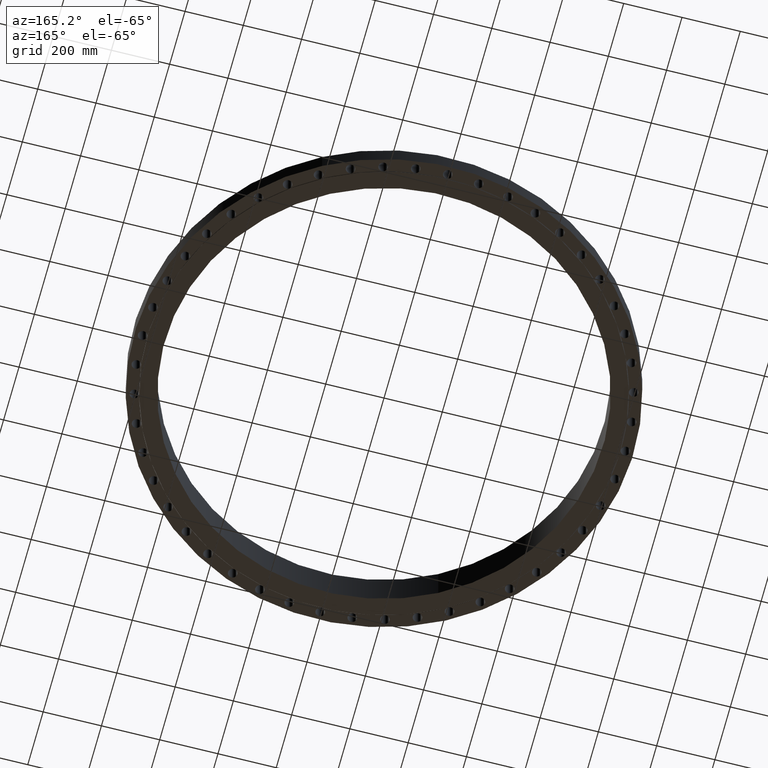
[diagram: clean part render]
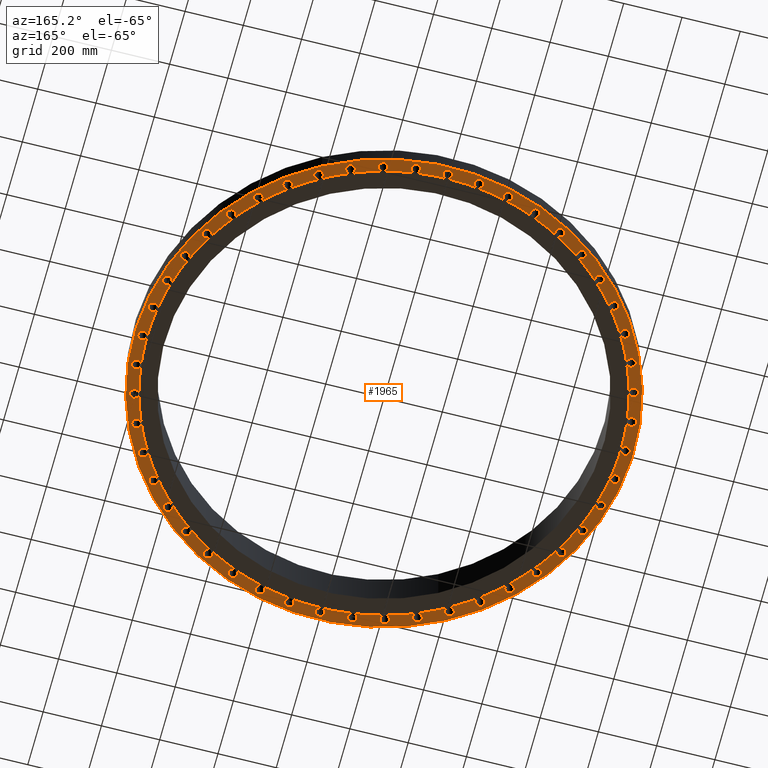
[diagram: same view with one face highlighted and labeled with its STEP entity id]
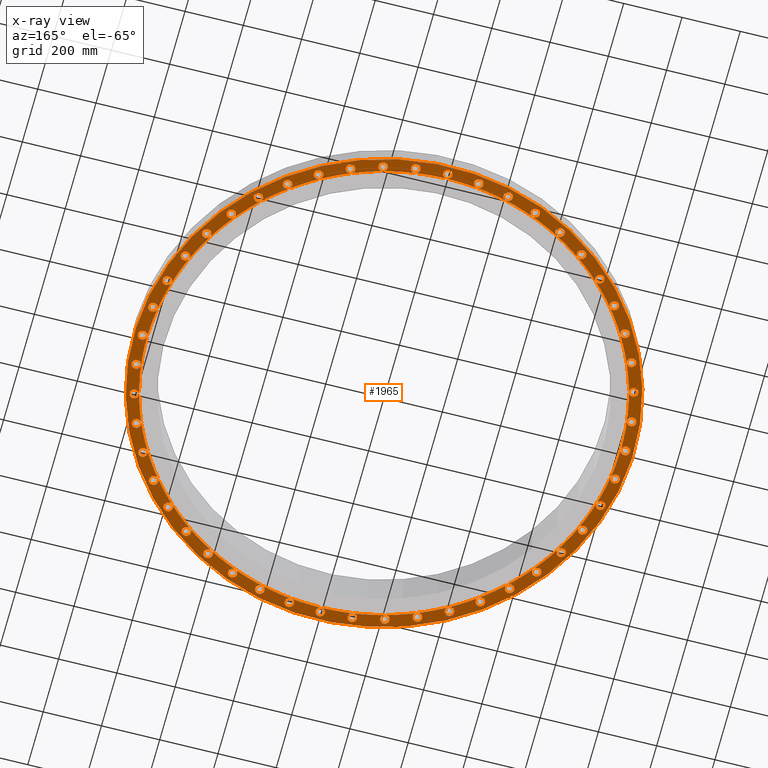
[diagram: x-ray of the same camera — body ghosted, the highlighted face saturated]
A machine part, auxiliary view. The second image highlights one B-rep face of the part: STEP entity #1965.
The next image is the same camera in x-ray: the body ghosted, the highlighted face saturated — about 0% of this face is hidden behind the body in this view.
In plain terms, the highlighted planar face has unit normal (0, 0, -1).
Its self-contained STEP definition (entity closure, byte-faithful):
#51=AXIS2_PLACEMENT_3D('Circle Axis2P3D',#49,#50,$) ;
#77=AXIS2_PLACEMENT_3D('Circle Axis2P3D',#75,#76,$) ;
#84=AXIS2_PLACEMENT_3D('Circle Axis2P3D',#82,#83,$) ;
#107=AXIS2_PLACEMENT_3D('Circle Axis2P3D',#105,#106,$) ;
#142=AXIS2_PLACEMENT_3D('Circle Axis2P3D',#140,#141,$) ;
#456=AXIS2_PLACEMENT_3D('Circle Axis2P3D',#454,#455,$) ;
#463=AXIS2_PLACEMENT_3D('Circle Axis2P3D',#461,#462,$) ;
#470=AXIS2_PLACEMENT_3D('Circle Axis2P3D',#468,#469,$) ;
#477=AXIS2_PLACEMENT_3D('Circle Axis2P3D',#475,#476,$) ;
#484=AXIS2_PLACEMENT_3D('Circle Axis2P3D',#482,#483,$) ;
#491=AXIS2_PLACEMENT_3D('Circle Axis2P3D',#489,#490,$) ;
#498=AXIS2_PLACEMENT_3D('Circle Axis2P3D',#496,#497,$) ;
#505=AXIS2_PLACEMENT_3D('Circle Axis2P3D',#503,#504,$) ;
#512=AXIS2_PLACEMENT_3D('Circle Axis2P3D',#510,#511,$) ;
#517=AXIS2_PLACEMENT_3D('Circle Axis2P3D',#515,#516,$) ;
#524=AXIS2_PLACEMENT_3D('Circle Axis2P3D',#522,#523,$) ;
#531=AXIS2_PLACEMENT_3D('Circle Axis2P3D',#529,#530,$) ;
#538=AXIS2_PLACEMENT_3D('Circle Axis2P3D',#536,#537,$) ;
#545=AXIS2_PLACEMENT_3D('Circle Axis2P3D',#543,#544,$) ;
#552=AXIS2_PLACEMENT_3D('Circle Axis2P3D',#550,#551,$) ;
#559=AXIS2_PLACEMENT_3D('Circle Axis2P3D',#557,#558,$) ;
#566=AXIS2_PLACEMENT_3D('Circle Axis2P3D',#564,#565,$) ;
#573=AXIS2_PLACEMENT_3D('Circle Axis2P3D',#571,#572,$) ;
#580=AXIS2_PLACEMENT_3D('Circle Axis2P3D',#578,#579,$) ;
#587=AXIS2_PLACEMENT_3D('Circle Axis2P3D',#585,#586,$) ;
#594=AXIS2_PLACEMENT_3D('Circle Axis2P3D',#592,#593,$) ;
#601=AXIS2_PLACEMENT_3D('Circle Axis2P3D',#599,#600,$) ;
#608=AXIS2_PLACEMENT_3D('Circle Axis2P3D',#606,#607,$) ;
#615=AXIS2_PLACEMENT_3D('Circle Axis2P3D',#613,#614,$) ;
#622=AXIS2_PLACEMENT_3D('Circle Axis2P3D',#620,#621,$) ;
#665=AXIS2_PLACEMENT_3D('Circle Axis2P3D',#663,#664,$) ;
#672=AXIS2_PLACEMENT_3D('Circle Axis2P3D',#670,#671,$) ;
#679=AXIS2_PLACEMENT_3D('Circle Axis2P3D',#677,#678,$) ;
#686=AXIS2_PLACEMENT_3D('Circle Axis2P3D',#684,#685,$) ;
#693=AXIS2_PLACEMENT_3D('Circle Axis2P3D',#691,#692,$) ;
#700=AXIS2_PLACEMENT_3D('Circle Axis2P3D',#698,#699,$) ;
#707=AXIS2_PLACEMENT_3D('Circle Axis2P3D',#705,#706,$) ;
#714=AXIS2_PLACEMENT_3D('Circle Axis2P3D',#712,#713,$) ;
#721=AXIS2_PLACEMENT_3D('Circle Axis2P3D',#719,#720,$) ;
#728=AXIS2_PLACEMENT_3D('Circle Axis2P3D',#726,#727,$) ;
#735=AXIS2_PLACEMENT_3D('Circle Axis2P3D',#733,#734,$) ;
#742=AXIS2_PLACEMENT_3D('Circle Axis2P3D',#740,#741,$) ;
#749=AXIS2_PLACEMENT_3D('Circle Axis2P3D',#747,#748,$) ;
#756=AXIS2_PLACEMENT_3D('Circle Axis2P3D',#754,#755,$) ;
#763=AXIS2_PLACEMENT_3D('Circle Axis2P3D',#761,#762,$) ;
#770=AXIS2_PLACEMENT_3D('Circle Axis2P3D',#768,#769,$) ;
#777=AXIS2_PLACEMENT_3D('Circle Axis2P3D',#775,#776,$) ;
#784=AXIS2_PLACEMENT_3D('Circle Axis2P3D',#782,#783,$) ;
#791=AXIS2_PLACEMENT_3D('Circle Axis2P3D',#789,#790,$) ;
#798=AXIS2_PLACEMENT_3D('Circle Axis2P3D',#796,#797,$) ;
#805=AXIS2_PLACEMENT_3D('Circle Axis2P3D',#803,#804,$) ;
#812=AXIS2_PLACEMENT_3D('Circle Axis2P3D',#810,#811,$) ;
#819=AXIS2_PLACEMENT_3D('Circle Axis2P3D',#817,#818,$) ;
#826=AXIS2_PLACEMENT_3D('Circle Axis2P3D',#824,#825,$) ;
#833=AXIS2_PLACEMENT_3D('Circle Axis2P3D',#831,#832,$) ;
#870=AXIS2_PLACEMENT_3D('Plane Axis2P3D',#867,#868,#869) ;
#878=AXIS2_PLACEMENT_3D('Circle Axis2P3D',#876,#877,$) ;
#885=AXIS2_PLACEMENT_3D('Circle Axis2P3D',#883,#884,$) ;
#892=AXIS2_PLACEMENT_3D('Circle Axis2P3D',#890,#891,$) ;
#897=AXIS2_PLACEMENT_3D('Circle Axis2P3D',#895,#896,$) ;
#904=AXIS2_PLACEMENT_3D('Circle Axis2P3D',#902,#903,$) ;
#911=AXIS2_PLACEMENT_3D('Circle Axis2P3D',#909,#910,$) ;
#916=AXIS2_PLACEMENT_3D('Circle Axis2P3D',#914,#915,$) ;
#923=AXIS2_PLACEMENT_3D('Circle Axis2P3D',#921,#922,$) ;
#930=AXIS2_PLACEMENT_3D('Circle Axis2P3D',#928,#929,$) ;
#935=AXIS2_PLACEMENT_3D('Circle Axis2P3D',#933,#934,$) ;
#942=AXIS2_PLACEMENT_3D('Circle Axis2P3D',#940,#941,$) ;
#949=AXIS2_PLACEMENT_3D('Circle Axis2P3D',#947,#948,$) ;
#954=AXIS2_PLACEMENT_3D('Circle Axis2P3D',#952,#953,$) ;
#961=AXIS2_PLACEMENT_3D('Circle Axis2P3D',#959,#960,$) ;
#968=AXIS2_PLACEMENT_3D('Circle Axis2P3D',#966,#967,$) ;
#973=AXIS2_PLACEMENT_3D('Circle Axis2P3D',#971,#972,$) ;
#980=AXIS2_PLACEMENT_3D('Circle Axis2P3D',#978,#979,$) ;
#987=AXIS2_PLACEMENT_3D('Circle Axis2P3D',#985,#986,$) ;
#992=AXIS2_PLACEMENT_3D('Circle Axis2P3D',#990,#991,$) ;
#999=AXIS2_PLACEMENT_3D('Circle Axis2P3D',#997,#998,$) ;
#1006=AXIS2_PLACEMENT_3D('Circle Axis2P3D',#1004,#1005,$) ;
#1011=AXIS2_PLACEMENT_3D('Circle Axis2P3D',#1009,#1010,$) ;
#1018=AXIS2_PLACEMENT_3D('Circle Axis2P3D',#1016,#1017,$) ;
#1025=AXIS2_PLACEMENT_3D('Circle Axis2P3D',#1023,#1024,$) ;
#1030=AXIS2_PLACEMENT_3D('Circle Axis2P3D',#1028,#1029,$) ;
#1037=AXIS2_PLACEMENT_3D('Circle Axis2P3D',#1035,#1036,$) ;
#1044=AXIS2_PLACEMENT_3D('Circle Axis2P3D',#1042,#1043,$) ;
#1049=AXIS2_PLACEMENT_3D('Circle Axis2P3D',#1047,#1048,$) ;
#1056=AXIS2_PLACEMENT_3D('Circle Axis2P3D',#1054,#1055,$) ;
#1063=AXIS2_PLACEMENT_3D('Circle Axis2P3D',#1061,#1062,$) ;
#1068=AXIS2_PLACEMENT_3D('Circle Axis2P3D',#1066,#1067,$) ;
#1075=AXIS2_PLACEMENT_3D('Circle Axis2P3D',#1073,#1074,$) ;
#1082=AXIS2_PLACEMENT_3D('Circle Axis2P3D',#1080,#1081,$) ;
#1087=AXIS2_PLACEMENT_3D('Circle Axis2P3D',#1085,#1086,$) ;
#1094=AXIS2_PLACEMENT_3D('Circle Axis2P3D',#1092,#1093,$) ;
#1101=AXIS2_PLACEMENT_3D('Circle Axis2P3D',#1099,#1100,$) ;
#1106=AXIS2_PLACEMENT_3D('Circle Axis2P3D',#1104,#1105,$) ;
#1113=AXIS2_PLACEMENT_3D('Circle Axis2P3D',#1111,#1112,$) ;
#1120=AXIS2_PLACEMENT_3D('Circle Axis2P3D',#1118,#1119,$) ;
#1125=AXIS2_PLACEMENT_3D('Circle Axis2P3D',#1123,#1124,$) ;
#1132=AXIS2_PLACEMENT_3D('Circle Axis2P3D',#1130,#1131,$) ;
#1139=AXIS2_PLACEMENT_3D('Circle Axis2P3D',#1137,#1138,$) ;
#1144=AXIS2_PLACEMENT_3D('Circle Axis2P3D',#1142,#1143,$) ;
#1151=AXIS2_PLACEMENT_3D('Circle Axis2P3D',#1149,#1150,$) ;
#1158=AXIS2_PLACEMENT_3D('Circle Axis2P3D',#1156,#1157,$) ;
#1163=AXIS2_PLACEMENT_3D('Circle Axis2P3D',#1161,#1162,$) ;
#1170=AXIS2_PLACEMENT_3D('Circle Axis2P3D',#1168,#1169,$) ;
#1177=AXIS2_PLACEMENT_3D('Circle Axis2P3D',#1175,#1176,$) ;
#1182=AXIS2_PLACEMENT_3D('Circle Axis2P3D',#1180,#1181,$) ;
#1189=AXIS2_PLACEMENT_3D('Circle Axis2P3D',#1187,#1188,$) ;
#1196=AXIS2_PLACEMENT_3D('Circle Axis2P3D',#1194,#1195,$) ;
#1201=AXIS2_PLACEMENT_3D('Circle Axis2P3D',#1199,#1200,$) ;
#1208=AXIS2_PLACEMENT_3D('Circle Axis2P3D',#1206,#1207,$) ;
#1215=AXIS2_PLACEMENT_3D('Circle Axis2P3D',#1213,#1214,$) ;
#1220=AXIS2_PLACEMENT_3D('Circle Axis2P3D',#1218,#1219,$) ;
#1227=AXIS2_PLACEMENT_3D('Circle Axis2P3D',#1225,#1226,$) ;
#1234=AXIS2_PLACEMENT_3D('Circle Axis2P3D',#1232,#1233,$) ;
#1239=AXIS2_PLACEMENT_3D('Circle Axis2P3D',#1237,#1238,$) ;
#1246=AXIS2_PLACEMENT_3D('Circle Axis2P3D',#1244,#1245,$) ;
#1253=AXIS2_PLACEMENT_3D('Circle Axis2P3D',#1251,#1252,$) ;
#1258=AXIS2_PLACEMENT_3D('Circle Axis2P3D',#1256,#1257,$) ;
#1265=AXIS2_PLACEMENT_3D('Circle Axis2P3D',#1263,#1264,$) ;
#1272=AXIS2_PLACEMENT_3D('Circle Axis2P3D',#1270,#1271,$) ;
#1277=AXIS2_PLACEMENT_3D('Circle Axis2P3D',#1275,#1276,$) ;
#1284=AXIS2_PLACEMENT_3D('Circle Axis2P3D',#1282,#1283,$) ;
#1291=AXIS2_PLACEMENT_3D('Circle Axis2P3D',#1289,#1290,$) ;
#1296=AXIS2_PLACEMENT_3D('Circle Axis2P3D',#1294,#1295,$) ;
#1303=AXIS2_PLACEMENT_3D('Circle Axis2P3D',#1301,#1302,$) ;
#1310=AXIS2_PLACEMENT_3D('Circle Axis2P3D',#1308,#1309,$) ;
#1315=AXIS2_PLACEMENT_3D('Circle Axis2P3D',#1313,#1314,$) ;
#1322=AXIS2_PLACEMENT_3D('Circle Axis2P3D',#1320,#1321,$) ;
#1329=AXIS2_PLACEMENT_3D('Circle Axis2P3D',#1327,#1328,$) ;
#1334=AXIS2_PLACEMENT_3D('Circle Axis2P3D',#1332,#1333,$) ;
#1341=AXIS2_PLACEMENT_3D('Circle Axis2P3D',#1339,#1340,$) ;
#1348=AXIS2_PLACEMENT_3D('Circle Axis2P3D',#1346,#1347,$) ;
#1353=AXIS2_PLACEMENT_3D('Circle Axis2P3D',#1351,#1352,$) ;
#1360=AXIS2_PLACEMENT_3D('Circle Axis2P3D',#1358,#1359,$) ;
#1367=AXIS2_PLACEMENT_3D('Circle Axis2P3D',#1365,#1366,$) ;
#1372=AXIS2_PLACEMENT_3D('Circle Axis2P3D',#1370,#1371,$) ;
#1379=AXIS2_PLACEMENT_3D('Circle Axis2P3D',#1377,#1378,$) ;
#1386=AXIS2_PLACEMENT_3D('Circle Axis2P3D',#1384,#1385,$) ;
#1391=AXIS2_PLACEMENT_3D('Circle Axis2P3D',#1389,#1390,$) ;
#1398=AXIS2_PLACEMENT_3D('Circle Axis2P3D',#1396,#1397,$) ;
#1405=AXIS2_PLACEMENT_3D('Circle Axis2P3D',#1403,#1404,$) ;
#1410=AXIS2_PLACEMENT_3D('Circle Axis2P3D',#1408,#1409,$) ;
#1417=AXIS2_PLACEMENT_3D('Circle Axis2P3D',#1415,#1416,$) ;
#1424=AXIS2_PLACEMENT_3D('Circle Axis2P3D',#1422,#1423,$) ;
#1429=AXIS2_PLACEMENT_3D('Circle Axis2P3D',#1427,#1428,$) ;
#1436=AXIS2_PLACEMENT_3D('Circle Axis2P3D',#1434,#1435,$) ;
#1443=AXIS2_PLACEMENT_3D('Circle Axis2P3D',#1441,#1442,$) ;
#1448=AXIS2_PLACEMENT_3D('Circle Axis2P3D',#1446,#1447,$) ;
#1455=AXIS2_PLACEMENT_3D('Circle Axis2P3D',#1453,#1454,$) ;
#1462=AXIS2_PLACEMENT_3D('Circle Axis2P3D',#1460,#1461,$) ;
#1467=AXIS2_PLACEMENT_3D('Circle Axis2P3D',#1465,#1466,$) ;
#1474=AXIS2_PLACEMENT_3D('Circle Axis2P3D',#1472,#1473,$) ;
#1481=AXIS2_PLACEMENT_3D('Circle Axis2P3D',#1479,#1480,$) ;
#1486=AXIS2_PLACEMENT_3D('Circle Axis2P3D',#1484,#1485,$) ;
#1493=AXIS2_PLACEMENT_3D('Circle Axis2P3D',#1491,#1492,$) ;
#1500=AXIS2_PLACEMENT_3D('Circle Axis2P3D',#1498,#1499,$) ;
#1505=AXIS2_PLACEMENT_3D('Circle Axis2P3D',#1503,#1504,$) ;
#1512=AXIS2_PLACEMENT_3D('Circle Axis2P3D',#1510,#1511,$) ;
#1519=AXIS2_PLACEMENT_3D('Circle Axis2P3D',#1517,#1518,$) ;
#1524=AXIS2_PLACEMENT_3D('Circle Axis2P3D',#1522,#1523,$) ;
#1531=AXIS2_PLACEMENT_3D('Circle Axis2P3D',#1529,#1530,$) ;
#1538=AXIS2_PLACEMENT_3D('Circle Axis2P3D',#1536,#1537,$) ;
#1543=AXIS2_PLACEMENT_3D('Circle Axis2P3D',#1541,#1542,$) ;
#1550=AXIS2_PLACEMENT_3D('Circle Axis2P3D',#1548,#1549,$) ;
#1557=AXIS2_PLACEMENT_3D('Circle Axis2P3D',#1555,#1556,$) ;
#1562=AXIS2_PLACEMENT_3D('Circle Axis2P3D',#1560,#1561,$) ;
#1569=AXIS2_PLACEMENT_3D('Circle Axis2P3D',#1567,#1568,$) ;
#1576=AXIS2_PLACEMENT_3D('Circle Axis2P3D',#1574,#1575,$) ;
#1581=AXIS2_PLACEMENT_3D('Circle Axis2P3D',#1579,#1580,$) ;
#1588=AXIS2_PLACEMENT_3D('Circle Axis2P3D',#1586,#1587,$) ;
#1595=AXIS2_PLACEMENT_3D('Circle Axis2P3D',#1593,#1594,$) ;
#1600=AXIS2_PLACEMENT_3D('Circle Axis2P3D',#1598,#1599,$) ;
#1607=AXIS2_PLACEMENT_3D('Circle Axis2P3D',#1605,#1606,$) ;
#1614=AXIS2_PLACEMENT_3D('Circle Axis2P3D',#1612,#1613,$) ;
#1619=AXIS2_PLACEMENT_3D('Circle Axis2P3D',#1617,#1618,$) ;
#1626=AXIS2_PLACEMENT_3D('Circle Axis2P3D',#1624,#1625,$) ;
#1633=AXIS2_PLACEMENT_3D('Circle Axis2P3D',#1631,#1632,$) ;
#1638=AXIS2_PLACEMENT_3D('Circle Axis2P3D',#1636,#1637,$) ;
#1645=AXIS2_PLACEMENT_3D('Circle Axis2P3D',#1643,#1644,$) ;
#1652=AXIS2_PLACEMENT_3D('Circle Axis2P3D',#1650,#1651,$) ;
#1657=AXIS2_PLACEMENT_3D('Circle Axis2P3D',#1655,#1656,$) ;
#1664=AXIS2_PLACEMENT_3D('Circle Axis2P3D',#1662,#1663,$) ;
#1671=AXIS2_PLACEMENT_3D('Circle Axis2P3D',#1669,#1670,$) ;
#1676=AXIS2_PLACEMENT_3D('Circle Axis2P3D',#1674,#1675,$) ;
#1683=AXIS2_PLACEMENT_3D('Circle Axis2P3D',#1681,#1682,$) ;
#1690=AXIS2_PLACEMENT_3D('Circle Axis2P3D',#1688,#1689,$) ;
#1695=AXIS2_PLACEMENT_3D('Circle Axis2P3D',#1693,#1694,$) ;
#1702=AXIS2_PLACEMENT_3D('Circle Axis2P3D',#1700,#1701,$) ;
#1709=AXIS2_PLACEMENT_3D('Circle Axis2P3D',#1707,#1708,$) ;
#1714=AXIS2_PLACEMENT_3D('Circle Axis2P3D',#1712,#1713,$) ;
#1721=AXIS2_PLACEMENT_3D('Circle Axis2P3D',#1719,#1720,$) ;
#1728=AXIS2_PLACEMENT_3D('Circle Axis2P3D',#1726,#1727,$) ;
#1733=AXIS2_PLACEMENT_3D('Circle Axis2P3D',#1731,#1732,$) ;
#1740=AXIS2_PLACEMENT_3D('Circle Axis2P3D',#1738,#1739,$) ;
#1747=AXIS2_PLACEMENT_3D('Circle Axis2P3D',#1745,#1746,$) ;
#1752=AXIS2_PLACEMENT_3D('Circle Axis2P3D',#1750,#1751,$) ;
#1759=AXIS2_PLACEMENT_3D('Circle Axis2P3D',#1757,#1758,$) ;
#1766=AXIS2_PLACEMENT_3D('Circle Axis2P3D',#1764,#1765,$) ;
#44=CARTESIAN_POINT('Vertex',(32.0765108989,0.299640961629,0.)) ;
#49=CARTESIAN_POINT('Axis2P3D Location',(32.6250000001,0.,0.)) ;
#53=CARTESIAN_POINT('Vertex',(33.1734891013,-0.299640961629,0.)) ;
#75=CARTESIAN_POINT('Axis2P3D Location',(32.6250000001,0.,0.)) ;
#79=CARTESIAN_POINT('Vertex',(32.0000000001,-4.90056793465E-014,3.91637728372E-015)) ;
#82=CARTESIAN_POINT('Axis2P3D Location',(32.6250000001,0.,0.)) ;
#105=CARTESIAN_POINT('Axis2P3D Location',(0.,0.,3.91637728372E-015)) ;
#109=CARTESIAN_POINT('Vertex',(-16.180611928,-29.6184114639,3.91637728372E-015)) ;
#111=CARTESIAN_POINT('Vertex',(16.180611928,29.6184114639,3.91637728372E-015)) ;
#140=CARTESIAN_POINT('Axis2P3D Location',(0.,0.,3.91637728372E-015)) ;
#451=CARTESIAN_POINT('Vertex',(15.3416172354,28.0826419806,4.47585975282E-015)) ;
#454=CARTESIAN_POINT('Axis2P3D Location',(0.,0.,3.91637728372E-015)) ;
#458=CARTESIAN_POINT('Vertex',(16.0000000001,27.7128129212,0.)) ;
#461=CARTESIAN_POINT('Axis2P3D Location',(0.,0.,3.91637728372E-015)) ;
#465=CARTESIAN_POINT('Vertex',(19.4803657284,25.3873068894,0.)) ;
#468=CARTESIAN_POINT('Axis2P3D Location',(0.,0.,3.91637728372E-015)) ;
#472=CARTESIAN_POINT('Vertex',(22.6274169981,22.6274169981,0.)) ;
#475=CARTESIAN_POINT('Axis2P3D Location',(0.,0.,3.91637728372E-015)) ;
#479=CARTESIAN_POINT('Vertex',(25.3873068894,19.4803657284,0.)) ;
#482=CARTESIAN_POINT('Axis2P3D Location',(0.,0.,3.91637728372E-015)) ;
#486=CARTESIAN_POINT('Vertex',(27.7128129212,16.0000000001,0.)) ;
#489=CARTESIAN_POINT('Axis2P3D Location',(0.,0.,3.91637728372E-015)) ;
#493=CARTESIAN_POINT('Vertex',(29.5641450405,12.2458698357,0.)) ;
#496=CARTESIAN_POINT('Axis2P3D Location',(0.,0.,3.91637728372E-015)) ;
#500=CARTESIAN_POINT('Vertex',(30.9096264414,8.28220944331,0.)) ;
#503=CARTESIAN_POINT('Axis2P3D Location',(0.,0.,3.91637728372E-015)) ;
#507=CARTESIAN_POINT('Vertex',(31.7262355641,4.17683815106,0.)) ;
#510=CARTESIAN_POINT('Axis2P3D Location',(0.,0.,3.91637728372E-015)) ;
#515=CARTESIAN_POINT('Axis2P3D Location',(0.,0.,3.91637728372E-015)) ;
#519=CARTESIAN_POINT('Vertex',(31.7262355641,-4.17683815106,0.)) ;
#522=CARTESIAN_POINT('Axis2P3D Location',(0.,0.,3.91637728372E-015)) ;
#526=CARTESIAN_POINT('Vertex',(30.9096264414,-8.28220944331,0.)) ;
#529=CARTESIAN_POINT('Axis2P3D Location',(0.,0.,3.91637728372E-015)) ;
#533=CARTESIAN_POINT('Vertex',(29.5641450405,-12.2458698357,0.)) ;
#536=CARTESIAN_POINT('Axis2P3D Location',(0.,0.,3.91637728372E-015)) ;
#540=CARTESIAN_POINT('Vertex',(27.7128129212,-16.0000000001,0.)) ;
#543=CARTESIAN_POINT('Axis2P3D Location',(0.,0.,3.91637728372E-015)) ;
#547=CARTESIAN_POINT('Vertex',(25.3873068894,-19.4803657284,0.)) ;
#550=CARTESIAN_POINT('Axis2P3D Location',(0.,0.,3.91637728372E-015)) ;
#554=CARTESIAN_POINT('Vertex',(22.6274169981,-22.6274169981,0.)) ;
#557=CARTESIAN_POINT('Axis2P3D Location',(0.,0.,3.91637728372E-015)) ;
#561=CARTESIAN_POINT('Vertex',(19.4803657284,-25.3873068894,0.)) ;
#564=CARTESIAN_POINT('Axis2P3D Location',(0.,0.,3.91637728372E-015)) ;
#568=CARTESIAN_POINT('Vertex',(16.0000000001,-27.7128129212,0.)) ;
#571=CARTESIAN_POINT('Axis2P3D Location',(0.,0.,3.91637728372E-015)) ;
#575=CARTESIAN_POINT('Vertex',(12.2458698357,-29.5641450405,0.)) ;
#578=CARTESIAN_POINT('Axis2P3D Location',(0.,0.,3.91637728372E-015)) ;
#582=CARTESIAN_POINT('Vertex',(8.28220944331,-30.9096264414,0.)) ;
#585=CARTESIAN_POINT('Axis2P3D Location',(0.,0.,3.91637728372E-015)) ;
#589=CARTESIAN_POINT('Vertex',(4.17683815106,-31.7262355641,0.)) ;
#592=CARTESIAN_POINT('Axis2P3D Location',(0.,0.,3.91637728372E-015)) ;
#596=CARTESIAN_POINT('Vertex',(2.3329251649E-015,-32.0000000001,0.)) ;
#599=CARTESIAN_POINT('Axis2P3D Location',(0.,0.,3.91637728372E-015)) ;
#603=CARTESIAN_POINT('Vertex',(-4.17683815106,-31.7262355641,0.)) ;
#606=CARTESIAN_POINT('Axis2P3D Location',(0.,0.,3.91637728372E-015)) ;
#610=CARTESIAN_POINT('Vertex',(-8.28220944331,-30.9096264414,0.)) ;
#613=CARTESIAN_POINT('Axis2P3D Location',(0.,0.,3.91637728372E-015)) ;
#617=CARTESIAN_POINT('Vertex',(-12.2458698357,-29.5641450405,0.)) ;
#620=CARTESIAN_POINT('Axis2P3D Location',(0.,0.,3.91637728372E-015)) ;
#624=CARTESIAN_POINT('Vertex',(-15.3416172354,-28.0826419806,4.47585975282E-015)) ;
#663=CARTESIAN_POINT('Axis2P3D Location',(0.,0.,3.91637728372E-015)) ;
#667=CARTESIAN_POINT('Vertex',(-16.0000000001,-27.7128129212,0.)) ;
#670=CARTESIAN_POINT('Axis2P3D Location',(0.,0.,3.91637728372E-015)) ;
#674=CARTESIAN_POINT('Vertex',(-19.4803657284,-25.3873068894,0.)) ;
#677=CARTESIAN_POINT('Axis2P3D Location',(0.,0.,3.91637728372E-015)) ;
#681=CARTESIAN_POINT('Vertex',(-22.6274169981,-22.6274169981,0.)) ;
#684=CARTESIAN_POINT('Axis2P3D Location',(0.,0.,3.91637728372E-015)) ;
#688=CARTESIAN_POINT('Vertex',(-25.3873068894,-19.4803657284,0.)) ;
#691=CARTESIAN_POINT('Axis2P3D Location',(0.,0.,3.91637728372E-015)) ;
#695=CARTESIAN_POINT('Vertex',(-27.7128129212,-16.0000000001,0.)) ;
#698=CARTESIAN_POINT('Axis2P3D Location',(0.,0.,3.91637728372E-015)) ;
#702=CARTESIAN_POINT('Vertex',(-29.5641450405,-12.2458698357,0.)) ;
#705=CARTESIAN_POINT('Axis2P3D Location',(0.,0.,3.91637728372E-015)) ;
#709=CARTESIAN_POINT('Vertex',(-30.9096264414,-8.28220944331,0.)) ;
#712=CARTESIAN_POINT('Axis2P3D Location',(0.,0.,3.91637728372E-015)) ;
#716=CARTESIAN_POINT('Vertex',(-31.7262355641,-4.17683815106,0.)) ;
#719=CARTESIAN_POINT('Axis2P3D Location',(0.,0.,3.91637728372E-015)) ;
#723=CARTESIAN_POINT('Vertex',(-32.0000000001,0.,0.)) ;
#726=CARTESIAN_POINT('Axis2P3D Location',(0.,0.,3.91637728372E-015)) ;
#730=CARTESIAN_POINT('Vertex',(-31.7262355641,4.17683815106,0.)) ;
#733=CARTESIAN_POINT('Axis2P3D Location',(0.,0.,3.91637728372E-015)) ;
#737=CARTESIAN_POINT('Vertex',(-30.9096264414,8.28220944331,0.)) ;
#740=CARTESIAN_POINT('Axis2P3D Location',(0.,0.,3.91637728372E-015)) ;
#744=CARTESIAN_POINT('Vertex',(-29.5641450405,12.2458698357,0.)) ;
#747=CARTESIAN_POINT('Axis2P3D Location',(0.,0.,3.91637728372E-015)) ;
#751=CARTESIAN_POINT('Vertex',(-27.7128129212,16.0000000001,0.)) ;
#754=CARTESIAN_POINT('Axis2P3D Location',(0.,0.,3.91637728372E-015)) ;
#758=CARTESIAN_POINT('Vertex',(-25.3873068894,19.4803657284,0.)) ;
#761=CARTESIAN_POINT('Axis2P3D Location',(0.,0.,3.91637728372E-015)) ;
#765=CARTESIAN_POINT('Vertex',(-22.6274169981,22.6274169981,0.)) ;
#768=CARTESIAN_POINT('Axis2P3D Location',(0.,0.,3.91637728372E-015)) ;
#772=CARTESIAN_POINT('Vertex',(-19.4803657284,25.3873068894,0.)) ;
#775=CARTESIAN_POINT('Axis2P3D Location',(0.,0.,3.91637728372E-015)) ;
#779=CARTESIAN_POINT('Vertex',(-16.0000000001,27.7128129212,0.)) ;
#782=CARTESIAN_POINT('Axis2P3D Location',(0.,0.,3.91637728372E-015)) ;
#786=CARTESIAN_POINT('Vertex',(-12.2458698357,29.5641450405,0.)) ;
#789=CARTESIAN_POINT('Axis2P3D Location',(0.,0.,3.91637728372E-015)) ;
#793=CARTESIAN_POINT('Vertex',(-8.28220944331,30.9096264414,0.)) ;
#796=CARTESIAN_POINT('Axis2P3D Location',(0.,0.,3.91637728372E-015)) ;
#800=CARTESIAN_POINT('Vertex',(-4.17683815106,31.7262355641,0.)) ;
#803=CARTESIAN_POINT('Axis2P3D Location',(0.,0.,3.91637728372E-015)) ;
#807=CARTESIAN_POINT('Vertex',(-6.31263264095E-015,32.0000000001,0.)) ;
#810=CARTESIAN_POINT('Axis2P3D Location',(0.,0.,3.91637728372E-015)) ;
#814=CARTESIAN_POINT('Vertex',(4.17683815106,31.7262355641,0.)) ;
#817=CARTESIAN_POINT('Axis2P3D Location',(0.,0.,3.91637728372E-015)) ;
#821=CARTESIAN_POINT('Vertex',(8.28220944331,30.9096264414,0.)) ;
#824=CARTESIAN_POINT('Axis2P3D Location',(0.,0.,3.91637728372E-015)) ;
#828=CARTESIAN_POINT('Vertex',(12.2458698357,29.5641450405,0.)) ;
#831=CARTESIAN_POINT('Axis2P3D Location',(0.,0.,3.91637728372E-015)) ;
#867=CARTESIAN_POINT('Axis2P3D Location',(0.,32.0000000001,0.)) ;
#876=CARTESIAN_POINT('Axis2P3D Location',(31.5133300828,-8.4439713465,0.)) ;
#880=CARTESIAN_POINT('Vertex',(31.9655770835,-8.87536171537,0.)) ;
#883=CARTESIAN_POINT('Axis2P3D Location',(31.5133300828,-8.4439713465,0.)) ;
#887=CARTESIAN_POINT('Vertex',(31.0610830821,-8.01258097763,0.)) ;
#890=CARTESIAN_POINT('Axis2P3D Location',(31.5133300828,-8.4439713465,0.)) ;
#895=CARTESIAN_POINT('Axis2P3D Location',(32.3458886024,-4.2584170212,0.)) ;
#899=CARTESIAN_POINT('Vertex',(32.8505743096,-4.62708670671,0.)) ;
#902=CARTESIAN_POINT('Axis2P3D Location',(32.3458886024,-4.2584170212,0.)) ;
#906=CARTESIAN_POINT('Vertex',(31.8412028953,-3.88974733568,0.)) ;
#909=CARTESIAN_POINT('Axis2P3D Location',(32.3458886024,-4.2584170212,0.)) ;
#914=CARTESIAN_POINT('Axis2P3D Location',(32.3458886024,4.2584170212,0.)) ;
#918=CARTESIAN_POINT('Vertex',(32.9287962971,4.03293172338,0.)) ;
#921=CARTESIAN_POINT('Axis2P3D Location',(32.3458886024,4.2584170212,0.)) ;
#925=CARTESIAN_POINT('Vertex',(31.7629809078,4.48390231901,0.)) ;
#928=CARTESIAN_POINT('Axis2P3D Location',(32.3458886024,4.2584170212,0.)) ;
#933=CARTESIAN_POINT('Axis2P3D Location',(31.5133300828,8.4439713465,0.)) ;
#937=CARTESIAN_POINT('Vertex',(32.1206826586,8.29649982847,0.)) ;
#940=CARTESIAN_POINT('Axis2P3D Location',(31.5133300828,8.4439713465,0.)) ;
#944=CARTESIAN_POINT('Vertex',(30.905977507,8.59144286454,0.)) ;
#947=CARTESIAN_POINT('Axis2P3D Location',(31.5133300828,8.4439713465,0.)) ;
#952=CARTESIAN_POINT('Axis2P3D Location',(30.1415697483,12.485046981,0.)) ;
#956=CARTESIAN_POINT('Vertex',(30.7629752344,12.4181125213,0.)) ;
#959=CARTESIAN_POINT('Axis2P3D Location',(30.1415697483,12.485046981,0.)) ;
#963=CARTESIAN_POINT('Vertex',(29.5201642622,12.5519814407,0.)) ;
#966=CARTESIAN_POINT('Axis2P3D Location',(30.1415697483,12.485046981,0.)) ;
#971=CARTESIAN_POINT('Axis2P3D Location',(28.2540787986,16.3125000001,0.)) ;
#975=CARTESIAN_POINT('Vertex',(28.8789047747,16.3272478659,0.)) ;
#978=CARTESIAN_POINT('Axis2P3D Location',(28.2540787986,16.3125000001,0.)) ;
#982=CARTESIAN_POINT('Vertex',(27.6292528224,16.2977521343,0.)) ;
#985=CARTESIAN_POINT('Axis2P3D Location',(28.2540787986,16.3125000001,0.)) ;
#990=CARTESIAN_POINT('Axis2P3D Location',(25.8831527271,19.8608416215,0.)) ;
#994=CARTESIAN_POINT('Vertex',(26.5007082476,19.9570194727,0.)) ;
#997=CARTESIAN_POINT('Axis2P3D Location',(25.8831527271,19.8608416215,0.)) ;
#1001=CARTESIAN_POINT('Vertex',(25.2655972066,19.7646637703,0.)) ;
#1004=CARTESIAN_POINT('Axis2P3D Location',(25.8831527271,19.8608416215,0.)) ;
#1009=CARTESIAN_POINT('Axis2P3D Location',(23.0693587363,23.0693587363,0.)) ;
#1013=CARTESIAN_POINT('Vertex',(23.669077255,23.2453209433,0.)) ;
#1016=CARTESIAN_POINT('Axis2P3D Location',(23.0693587363,23.0693587363,0.)) ;
#1020=CARTESIAN_POINT('Vertex',(22.4696402176,22.8933965293,0.)) ;
#1023=CARTESIAN_POINT('Axis2P3D Location',(23.0693587363,23.0693587363,0.)) ;
#1028=CARTESIAN_POINT('Axis2P3D Location',(19.8608416215,25.8831527271,0.)) ;
#1032=CARTESIAN_POINT('Vertex',(20.4324617883,26.1358885277,-2.23792987641E-015)) ;
#1035=CARTESIAN_POINT('Axis2P3D Location',(19.8608416215,25.8831527271,0.)) ;
#1039=CARTESIAN_POINT('Vertex',(19.2892214547,25.6304169266,0.)) ;
#1042=CARTESIAN_POINT('Axis2P3D Location',(19.8608416215,25.8831527271,0.)) ;
#1047=CARTESIAN_POINT('Axis2P3D Location',(16.3125000001,28.2540787986,0.)) ;
#1051=CARTESIAN_POINT('Vertex',(16.8462412354,28.5792638131,0.)) ;
#1054=CARTESIAN_POINT('Axis2P3D Location',(16.3125000001,28.2540787986,0.)) ;
#1058=CARTESIAN_POINT('Vertex',(15.7787587647,27.9288937841,0.)) ;
#1061=CARTESIAN_POINT('Axis2P3D Location',(16.3125000001,28.2540787986,0.)) ;
#1066=CARTESIAN_POINT('Axis2P3D Location',(12.485046981,30.1415697483,0.)) ;
#1070=CARTESIAN_POINT('Vertex',(12.9717768244,30.533639971,-2.23792987641E-015)) ;
#1073=CARTESIAN_POINT('Axis2P3D Location',(12.485046981,30.1415697483,0.)) ;
#1077=CARTESIAN_POINT('Vertex',(11.9983171376,29.7494995256,0.)) ;
#1080=CARTESIAN_POINT('Axis2P3D Location',(12.485046981,30.1415697483,0.)) ;
#1085=CARTESIAN_POINT('Axis2P3D Location',(8.4439713465,31.5133300828,0.)) ;
#1089=CARTESIAN_POINT('Vertex',(8.87536171537,31.9655770835,0.)) ;
#1092=CARTESIAN_POINT('Axis2P3D Location',(8.4439713465,31.5133300828,0.)) ;
#1096=CARTESIAN_POINT('Vertex',(8.01258097763,31.0610830821,0.)) ;
#1099=CARTESIAN_POINT('Axis2P3D Location',(8.4439713465,31.5133300828,0.)) ;
#1104=CARTESIAN_POINT('Axis2P3D Location',(4.2584170212,32.3458886024,0.)) ;
#1108=CARTESIAN_POINT('Vertex',(4.62708670671,32.8505743096,0.)) ;
#1111=CARTESIAN_POINT('Axis2P3D Location',(4.2584170212,32.3458886024,0.)) ;
#1115=CARTESIAN_POINT('Vertex',(3.88974733568,31.8412028953,0.)) ;
#1118=CARTESIAN_POINT('Axis2P3D Location',(4.2584170212,32.3458886024,0.)) ;
#1123=CARTESIAN_POINT('Axis2P3D Location',(-6.50398370332E-015,32.6250000001,0.)) ;
#1127=CARTESIAN_POINT('Vertex',(0.299640961629,33.1734891013,0.)) ;
#1130=CARTESIAN_POINT('Axis2P3D Location',(-5.45495407375E-015,32.6250000001,0.)) ;
#1134=CARTESIAN_POINT('Vertex',(-0.299640961629,32.0765108989,0.)) ;
#1137=CARTESIAN_POINT('Axis2P3D Location',(-6.50398370332E-015,32.6250000001,0.)) ;
#1142=CARTESIAN_POINT('Axis2P3D Location',(-4.2584170212,32.3458886024,0.)) ;
#1146=CARTESIAN_POINT('Vertex',(-4.03293172338,32.9287962971,0.)) ;
#1149=CARTESIAN_POINT('Axis2P3D Location',(-4.2584170212,32.3458886024,0.)) ;
#1153=CARTESIAN_POINT('Vertex',(-4.48390231901,31.7629809078,0.)) ;
#1156=CARTESIAN_POINT('Axis2P3D Location',(-4.2584170212,32.3458886024,0.)) ;
#1161=CARTESIAN_POINT('Axis2P3D Location',(-8.4439713465,31.5133300828,0.)) ;
#1165=CARTESIAN_POINT('Vertex',(-8.29649982847,32.1206826586,0.)) ;
#1168=CARTESIAN_POINT('Axis2P3D Location',(-8.4439713465,31.5133300828,0.)) ;
#1172=CARTESIAN_POINT('Vertex',(-8.59144286454,30.905977507,0.)) ;
#1175=CARTESIAN_POINT('Axis2P3D Location',(-8.4439713465,31.5133300828,0.)) ;
#1180=CARTESIAN_POINT('Axis2P3D Location',(-12.485046981,30.1415697483,0.)) ;
#1184=CARTESIAN_POINT('Vertex',(-12.4181125213,30.7629752344,0.)) ;
#1187=CARTESIAN_POINT('Axis2P3D Location',(-12.485046981,30.1415697483,0.)) ;
#1191=CARTESIAN_POINT('Vertex',(-12.5519814407,29.5201642622,0.)) ;
#1194=CARTESIAN_POINT('Axis2P3D Location',(-12.485046981,30.1415697483,0.)) ;
#1199=CARTESIAN_POINT('Axis2P3D Location',(-16.3125000001,28.2540787986,0.)) ;
#1203=CARTESIAN_POINT('Vertex',(-16.3272478659,28.8789047747,0.)) ;
#1206=CARTESIAN_POINT('Axis2P3D Location',(-16.3125000001,28.2540787986,0.)) ;
#1210=CARTESIAN_POINT('Vertex',(-16.2977521343,27.6292528224,0.)) ;
#1213=CARTESIAN_POINT('Axis2P3D Location',(-16.3125000001,28.2540787986,0.)) ;
#1218=CARTESIAN_POINT('Axis2P3D Location',(-19.8608416215,25.8831527271,0.)) ;
#1222=CARTESIAN_POINT('Vertex',(-19.9570194727,26.5007082476,0.)) ;
#1225=CARTESIAN_POINT('Axis2P3D Location',(-19.8608416215,25.8831527271,0.)) ;
#1229=CARTESIAN_POINT('Vertex',(-19.7646637703,25.2655972066,0.)) ;
#1232=CARTESIAN_POINT('Axis2P3D Location',(-19.8608416215,25.8831527271,0.)) ;
#1237=CARTESIAN_POINT('Axis2P3D Location',(-23.0693587363,23.0693587363,0.)) ;
#1241=CARTESIAN_POINT('Vertex',(-23.2453209433,23.669077255,0.)) ;
#1244=CARTESIAN_POINT('Axis2P3D Location',(-23.0693587363,23.0693587363,0.)) ;
#1248=CARTESIAN_POINT('Vertex',(-22.8933965293,22.4696402176,0.)) ;
#1251=CARTESIAN_POINT('Axis2P3D Location',(-23.0693587363,23.0693587363,0.)) ;
#1256=CARTESIAN_POINT('Axis2P3D Location',(-25.8831527271,19.8608416215,0.)) ;
#1260=CARTESIAN_POINT('Vertex',(-26.1358885277,20.4324617883,0.)) ;
#1263=CARTESIAN_POINT('Axis2P3D Location',(-25.8831527271,19.8608416215,0.)) ;
#1267=CARTESIAN_POINT('Vertex',(-25.6304169266,19.2892214547,0.)) ;
#1270=CARTESIAN_POINT('Axis2P3D Location',(-25.8831527271,19.8608416215,0.)) ;
#1275=CARTESIAN_POINT('Axis2P3D Location',(-28.2540787986,16.3125000001,0.)) ;
#1279=CARTESIAN_POINT('Vertex',(-28.5792638131,16.8462412354,0.)) ;
#1282=CARTESIAN_POINT('Axis2P3D Location',(-28.2540787986,16.3125000001,0.)) ;
#1286=CARTESIAN_POINT('Vertex',(-27.9288937841,15.7787587647,0.)) ;
#1289=CARTESIAN_POINT('Axis2P3D Location',(-28.2540787986,16.3125000001,0.)) ;
#1294=CARTESIAN_POINT('Axis2P3D Location',(-30.1415697483,12.485046981,0.)) ;
#1298=CARTESIAN_POINT('Vertex',(-30.533639971,12.9717768244,0.)) ;
#1301=CARTESIAN_POINT('Axis2P3D Location',(-30.1415697483,12.485046981,0.)) ;
#1305=CARTESIAN_POINT('Vertex',(-29.7494995256,11.9983171376,0.)) ;
#1308=CARTESIAN_POINT('Axis2P3D Location',(-30.1415697483,12.485046981,0.)) ;
#1313=CARTESIAN_POINT('Axis2P3D Location',(-31.5133300828,8.4439713465,0.)) ;
#1317=CARTESIAN_POINT('Vertex',(-31.9655770835,8.87536171537,0.)) ;
#1320=CARTESIAN_POINT('Axis2P3D Location',(-31.5133300828,8.4439713465,0.)) ;
#1324=CARTESIAN_POINT('Vertex',(-31.0610830821,8.01258097763,0.)) ;
#1327=CARTESIAN_POINT('Axis2P3D Location',(-31.5133300828,8.4439713465,0.)) ;
#1332=CARTESIAN_POINT('Axis2P3D Location',(-32.3458886024,4.2584170212,0.)) ;
#1336=CARTESIAN_POINT('Vertex',(-32.8505743096,4.62708670671,0.)) ;
#1339=CARTESIAN_POINT('Axis2P3D Location',(-32.3458886024,4.2584170212,0.)) ;
#1343=CARTESIAN_POINT('Vertex',(-31.8412028953,3.88974733568,0.)) ;
#1346=CARTESIAN_POINT('Axis2P3D Location',(-32.3458886024,4.2584170212,0.)) ;
#1351=CARTESIAN_POINT('Axis2P3D Location',(-32.6250000001,0.,0.)) ;
#1355=CARTESIAN_POINT('Vertex',(-33.1734891013,0.299640961629,0.)) ;
#1358=CARTESIAN_POINT('Axis2P3D Location',(-32.6250000001,0.,0.)) ;
#1362=CARTESIAN_POINT('Vertex',(-32.0765108989,-0.299640961629,0.)) ;
#1365=CARTESIAN_POINT('Axis2P3D Location',(-32.6250000001,0.,0.)) ;
#1370=CARTESIAN_POINT('Axis2P3D Location',(-32.3458886024,-4.2584170212,0.)) ;
#1374=CARTESIAN_POINT('Vertex',(-32.9287962971,-4.03293172338,0.)) ;
#1377=CARTESIAN_POINT('Axis2P3D Location',(-32.3458886024,-4.2584170212,0.)) ;
#1381=CARTESIAN_POINT('Vertex',(-31.7629809078,-4.48390231901,0.)) ;
#1384=CARTESIAN_POINT('Axis2P3D Location',(-32.3458886024,-4.2584170212,0.)) ;
#1389=CARTESIAN_POINT('Axis2P3D Location',(-31.5133300828,-8.4439713465,0.)) ;
#1393=CARTESIAN_POINT('Vertex',(-32.1206826586,-8.29649982847,0.)) ;
#1396=CARTESIAN_POINT('Axis2P3D Location',(-31.5133300828,-8.4439713465,0.)) ;
#1400=CARTESIAN_POINT('Vertex',(-30.905977507,-8.59144286454,0.)) ;
#1403=CARTESIAN_POINT('Axis2P3D Location',(-31.5133300828,-8.4439713465,0.)) ;
#1408=CARTESIAN_POINT('Axis2P3D Location',(-30.1415697483,-12.485046981,0.)) ;
#1412=CARTESIAN_POINT('Vertex',(-30.7629752344,-12.4181125213,0.)) ;
#1415=CARTESIAN_POINT('Axis2P3D Location',(-30.1415697483,-12.485046981,0.)) ;
#1419=CARTESIAN_POINT('Vertex',(-29.5201642622,-12.5519814407,0.)) ;
#1422=CARTESIAN_POINT('Axis2P3D Location',(-30.1415697483,-12.485046981,0.)) ;
#1427=CARTESIAN_POINT('Axis2P3D Location',(-28.2540787986,-16.3125000001,0.)) ;
#1431=CARTESIAN_POINT('Vertex',(-28.8789047747,-16.3272478659,0.)) ;
#1434=CARTESIAN_POINT('Axis2P3D Location',(-28.2540787986,-16.3125000001,0.)) ;
#1438=CARTESIAN_POINT('Vertex',(-27.6292528224,-16.2977521343,0.)) ;
#1441=CARTESIAN_POINT('Axis2P3D Location',(-28.2540787986,-16.3125000001,0.)) ;
#1446=CARTESIAN_POINT('Axis2P3D Location',(-25.8831527271,-19.8608416215,0.)) ;
#1450=CARTESIAN_POINT('Vertex',(-26.5007082476,-19.9570194727,-1.1189649382E-015)) ;
#1453=CARTESIAN_POINT('Axis2P3D Location',(-25.8831527271,-19.8608416215,0.)) ;
#1457=CARTESIAN_POINT('Vertex',(-25.2655972066,-19.7646637703,0.)) ;
#1460=CARTESIAN_POINT('Axis2P3D Location',(-25.8831527271,-19.8608416215,0.)) ;
#1465=CARTESIAN_POINT('Axis2P3D Location',(-23.0693587363,-23.0693587363,0.)) ;
#1469=CARTESIAN_POINT('Vertex',(-23.669077255,-23.2453209433,0.)) ;
#1472=CARTESIAN_POINT('Axis2P3D Location',(-23.0693587363,-23.0693587363,0.)) ;
#1476=CARTESIAN_POINT('Vertex',(-22.4696402176,-22.8933965293,0.)) ;
#1479=CARTESIAN_POINT('Axis2P3D Location',(-23.0693587363,-23.0693587363,0.)) ;
#1484=CARTESIAN_POINT('Axis2P3D Location',(-19.8608416215,-25.8831527271,0.)) ;
#1488=CARTESIAN_POINT('Vertex',(-20.4324617883,-26.1358885277,0.)) ;
#1491=CARTESIAN_POINT('Axis2P3D Location',(-19.8608416215,-25.8831527271,0.)) ;
#1495=CARTESIAN_POINT('Vertex',(-19.2892214547,-25.6304169266,0.)) ;
#1498=CARTESIAN_POINT('Axis2P3D Location',(-19.8608416215,-25.8831527271,0.)) ;
#1503=CARTESIAN_POINT('Axis2P3D Location',(-16.3125000001,-28.2540787986,0.)) ;
#1507=CARTESIAN_POINT('Vertex',(-16.8462412354,-28.5792638131,-2.23792987641E-015)) ;
#1510=CARTESIAN_POINT('Axis2P3D Location',(-16.3125000001,-28.2540787986,0.)) ;
#1514=CARTESIAN_POINT('Vertex',(-15.7787587647,-27.9288937841,0.)) ;
#1517=CARTESIAN_POINT('Axis2P3D Location',(-16.3125000001,-28.2540787986,0.)) ;
#1522=CARTESIAN_POINT('Axis2P3D Location',(-12.485046981,-30.1415697483,0.)) ;
#1526=CARTESIAN_POINT('Vertex',(-12.9717768244,-30.533639971,0.)) ;
#1529=CARTESIAN_POINT('Axis2P3D Location',(-12.485046981,-30.1415697483,0.)) ;
#1533=CARTESIAN_POINT('Vertex',(-11.9983171376,-29.7494995256,0.)) ;
#1536=CARTESIAN_POINT('Axis2P3D Location',(-12.485046981,-30.1415697483,0.)) ;
#1541=CARTESIAN_POINT('Axis2P3D Location',(-8.4439713465,-31.5133300828,0.)) ;
#1545=CARTESIAN_POINT('Vertex',(-8.87536171537,-31.9655770835,-1.1189649382E-015)) ;
#1548=CARTESIAN_POINT('Axis2P3D Location',(-8.4439713465,-31.5133300828,0.)) ;
#1552=CARTESIAN_POINT('Vertex',(-8.01258097763,-31.0610830821,0.)) ;
#1555=CARTESIAN_POINT('Axis2P3D Location',(-8.4439713465,-31.5133300828,0.)) ;
#1560=CARTESIAN_POINT('Axis2P3D Location',(-4.2584170212,-32.3458886024,0.)) ;
#1564=CARTESIAN_POINT('Vertex',(-4.62708670671,-32.8505743096,0.)) ;
#1567=CARTESIAN_POINT('Axis2P3D Location',(-4.2584170212,-32.3458886024,0.)) ;
#1571=CARTESIAN_POINT('Vertex',(-3.88974733568,-31.8412028953,0.)) ;
#1574=CARTESIAN_POINT('Axis2P3D Location',(-4.2584170212,-32.3458886024,0.)) ;
#1579=CARTESIAN_POINT('Axis2P3D Location',(2.44773580232E-015,-32.6250000001,0.)) ;
#1583=CARTESIAN_POINT('Vertex',(-0.299640961629,-33.1734891013,0.)) ;
#1586=CARTESIAN_POINT('Axis2P3D Location',(1.53857679003E-015,-32.6250000001,0.)) ;
#1590=CARTESIAN_POINT('Vertex',(0.299640961629,-32.0765108989,0.)) ;
#1593=CARTESIAN_POINT('Axis2P3D Location',(2.44773580232E-015,-32.6250000001,0.)) ;
#1598=CARTESIAN_POINT('Axis2P3D Location',(4.2584170212,-32.3458886024,0.)) ;
#1602=CARTESIAN_POINT('Vertex',(4.03293172338,-32.9287962971,0.)) ;
#1605=CARTESIAN_POINT('Axis2P3D Location',(4.2584170212,-32.3458886024,0.)) ;
#1609=CARTESIAN_POINT('Vertex',(4.48390231901,-31.7629809078,0.)) ;
#1612=CARTESIAN_POINT('Axis2P3D Location',(4.2584170212,-32.3458886024,0.)) ;
#1617=CARTESIAN_POINT('Axis2P3D Location',(8.4439713465,-31.5133300828,0.)) ;
#1621=CARTESIAN_POINT('Vertex',(8.29649982847,-32.1206826586,0.)) ;
#1624=CARTESIAN_POINT('Axis2P3D Location',(8.4439713465,-31.5133300828,0.)) ;
#1628=CARTESIAN_POINT('Vertex',(8.59144286454,-30.905977507,0.)) ;
#1631=CARTESIAN_POINT('Axis2P3D Location',(8.4439713465,-31.5133300828,0.)) ;
#1636=CARTESIAN_POINT('Axis2P3D Location',(12.485046981,-30.1415697483,0.)) ;
#1640=CARTESIAN_POINT('Vertex',(12.4181125213,-30.7629752344,0.)) ;
#1643=CARTESIAN_POINT('Axis2P3D Location',(12.485046981,-30.1415697483,0.)) ;
#1647=CARTESIAN_POINT('Vertex',(12.5519814407,-29.5201642622,0.)) ;
#1650=CARTESIAN_POINT('Axis2P3D Location',(12.485046981,-30.1415697483,0.)) ;
#1655=CARTESIAN_POINT('Axis2P3D Location',(16.3125000001,-28.2540787986,0.)) ;
#1659=CARTESIAN_POINT('Vertex',(16.3272478659,-28.8789047747,0.)) ;
#1662=CARTESIAN_POINT('Axis2P3D Location',(16.3125000001,-28.2540787986,0.)) ;
#1666=CARTESIAN_POINT('Vertex',(16.2977521343,-27.6292528224,0.)) ;
#1669=CARTESIAN_POINT('Axis2P3D Location',(16.3125000001,-28.2540787986,0.)) ;
#1674=CARTESIAN_POINT('Axis2P3D Location',(19.8608416215,-25.8831527271,0.)) ;
#1678=CARTESIAN_POINT('Vertex',(19.9570194727,-26.5007082476,0.)) ;
#1681=CARTESIAN_POINT('Axis2P3D Location',(19.8608416215,-25.8831527271,0.)) ;
#1685=CARTESIAN_POINT('Vertex',(19.7646637703,-25.2655972066,0.)) ;
#1688=CARTESIAN_POINT('Axis2P3D Location',(19.8608416215,-25.8831527271,0.)) ;
#1693=CARTESIAN_POINT('Axis2P3D Location',(23.0693587363,-23.0693587363,0.)) ;
#1697=CARTESIAN_POINT('Vertex',(23.2453209433,-23.669077255,0.)) ;
#1700=CARTESIAN_POINT('Axis2P3D Location',(23.0693587363,-23.0693587363,0.)) ;
#1704=CARTESIAN_POINT('Vertex',(22.8933965293,-22.4696402176,0.)) ;
#1707=CARTESIAN_POINT('Axis2P3D Location',(23.0693587363,-23.0693587363,0.)) ;
#1712=CARTESIAN_POINT('Axis2P3D Location',(25.8831527271,-19.8608416215,0.)) ;
#1716=CARTESIAN_POINT('Vertex',(26.1358885277,-20.4324617883,0.)) ;
#1719=CARTESIAN_POINT('Axis2P3D Location',(25.8831527271,-19.8608416215,0.)) ;
#1723=CARTESIAN_POINT('Vertex',(25.6304169266,-19.2892214547,0.)) ;
#1726=CARTESIAN_POINT('Axis2P3D Location',(25.8831527271,-19.8608416215,0.)) ;
#1731=CARTESIAN_POINT('Axis2P3D Location',(28.2540787986,-16.3125000001,0.)) ;
#1735=CARTESIAN_POINT('Vertex',(28.5792638131,-16.8462412354,0.)) ;
#1738=CARTESIAN_POINT('Axis2P3D Location',(28.2540787986,-16.3125000001,0.)) ;
#1742=CARTESIAN_POINT('Vertex',(27.9288937841,-15.7787587647,0.)) ;
#1745=CARTESIAN_POINT('Axis2P3D Location',(28.2540787986,-16.3125000001,0.)) ;
#1750=CARTESIAN_POINT('Axis2P3D Location',(30.1415697483,-12.485046981,0.)) ;
#1754=CARTESIAN_POINT('Vertex',(30.533639971,-12.9717768244,0.)) ;
#1757=CARTESIAN_POINT('Axis2P3D Location',(30.1415697483,-12.485046981,0.)) ;
#1761=CARTESIAN_POINT('Vertex',(29.7494995256,-11.9983171376,0.)) ;
#1764=CARTESIAN_POINT('Axis2P3D Location',(30.1415697483,-12.485046981,0.)) ;
#50=DIRECTION('Axis2P3D Direction',(0.,-0.,-0.0393700787402)) ;
#76=DIRECTION('Axis2P3D Direction',(0.,-0.,-0.0393700787402)) ;
#83=DIRECTION('Axis2P3D Direction',(0.,-0.,-0.0393700787402)) ;
#106=DIRECTION('Axis2P3D Direction',(0.,0.,-0.0393700787402)) ;
#141=DIRECTION('Axis2P3D Direction',(0.,0.,-0.0393700787402)) ;
#455=DIRECTION('Axis2P3D Direction',(0.,0.,-0.0393700787402)) ;
#462=DIRECTION('Axis2P3D Direction',(0.,0.,-0.0393700787402)) ;
#469=DIRECTION('Axis2P3D Direction',(0.,0.,-0.0393700787402)) ;
#476=DIRECTION('Axis2P3D Direction',(0.,0.,-0.0393700787402)) ;
#483=DIRECTION('Axis2P3D Direction',(0.,0.,-0.0393700787402)) ;
#490=DIRECTION('Axis2P3D Direction',(0.,0.,-0.0393700787402)) ;
#497=DIRECTION('Axis2P3D Direction',(0.,0.,-0.0393700787402)) ;
#504=DIRECTION('Axis2P3D Direction',(0.,0.,-0.0393700787402)) ;
#511=DIRECTION('Axis2P3D Direction',(0.,0.,-0.0393700787402)) ;
#516=DIRECTION('Axis2P3D Direction',(0.,0.,-0.0393700787402)) ;
#523=DIRECTION('Axis2P3D Direction',(0.,0.,-0.0393700787402)) ;
#530=DIRECTION('Axis2P3D Direction',(0.,0.,-0.0393700787402)) ;
#537=DIRECTION('Axis2P3D Direction',(0.,0.,-0.0393700787402)) ;
#544=DIRECTION('Axis2P3D Direction',(0.,0.,-0.0393700787402)) ;
#551=DIRECTION('Axis2P3D Direction',(0.,0.,-0.0393700787402)) ;
#558=DIRECTION('Axis2P3D Direction',(0.,0.,-0.0393700787402)) ;
#565=DIRECTION('Axis2P3D Direction',(0.,0.,-0.0393700787402)) ;
#572=DIRECTION('Axis2P3D Direction',(0.,0.,-0.0393700787402)) ;
#579=DIRECTION('Axis2P3D Direction',(0.,0.,-0.0393700787402)) ;
#586=DIRECTION('Axis2P3D Direction',(0.,0.,-0.0393700787402)) ;
#593=DIRECTION('Axis2P3D Direction',(0.,0.,-0.0393700787402)) ;
#600=DIRECTION('Axis2P3D Direction',(0.,0.,-0.0393700787402)) ;
#607=DIRECTION('Axis2P3D Direction',(0.,0.,-0.0393700787402)) ;
#614=DIRECTION('Axis2P3D Direction',(0.,0.,-0.0393700787402)) ;
#621=DIRECTION('Axis2P3D Direction',(0.,0.,-0.0393700787402)) ;
#664=DIRECTION('Axis2P3D Direction',(0.,0.,-0.0393700787402)) ;
#671=DIRECTION('Axis2P3D Direction',(0.,0.,-0.0393700787402)) ;
#678=DIRECTION('Axis2P3D Direction',(0.,0.,-0.0393700787402)) ;
#685=DIRECTION('Axis2P3D Direction',(0.,0.,-0.0393700787402)) ;
#692=DIRECTION('Axis2P3D Direction',(0.,0.,-0.0393700787402)) ;
#699=DIRECTION('Axis2P3D Direction',(0.,0.,-0.0393700787402)) ;
#706=DIRECTION('Axis2P3D Direction',(0.,0.,-0.0393700787402)) ;
#713=DIRECTION('Axis2P3D Direction',(0.,0.,-0.0393700787402)) ;
#720=DIRECTION('Axis2P3D Direction',(0.,0.,-0.0393700787402)) ;
#727=DIRECTION('Axis2P3D Direction',(0.,0.,-0.0393700787402)) ;
#734=DIRECTION('Axis2P3D Direction',(0.,0.,-0.0393700787402)) ;
#741=DIRECTION('Axis2P3D Direction',(0.,0.,-0.0393700787402)) ;
#748=DIRECTION('Axis2P3D Direction',(0.,0.,-0.0393700787402)) ;
#755=DIRECTION('Axis2P3D Direction',(0.,0.,-0.0393700787402)) ;
#762=DIRECTION('Axis2P3D Direction',(0.,0.,-0.0393700787402)) ;
#769=DIRECTION('Axis2P3D Direction',(0.,0.,-0.0393700787402)) ;
#776=DIRECTION('Axis2P3D Direction',(0.,0.,-0.0393700787402)) ;
#783=DIRECTION('Axis2P3D Direction',(0.,0.,-0.0393700787402)) ;
#790=DIRECTION('Axis2P3D Direction',(0.,0.,-0.0393700787402)) ;
#797=DIRECTION('Axis2P3D Direction',(0.,0.,-0.0393700787402)) ;
#804=DIRECTION('Axis2P3D Direction',(0.,0.,-0.0393700787402)) ;
#811=DIRECTION('Axis2P3D Direction',(0.,0.,-0.0393700787402)) ;
#818=DIRECTION('Axis2P3D Direction',(0.,0.,-0.0393700787402)) ;
#825=DIRECTION('Axis2P3D Direction',(0.,0.,-0.0393700787402)) ;
#832=DIRECTION('Axis2P3D Direction',(0.,0.,-0.0393700787402)) ;
#868=DIRECTION('Axis2P3D Direction',(0.,0.,-0.0393700787402)) ;
#869=DIRECTION('Axis2P3D XDirection',(0.0393700787402,0.,0.)) ;
#877=DIRECTION('Axis2P3D Direction',(0.,0.,-0.0393700787402)) ;
#884=DIRECTION('Axis2P3D Direction',(0.,0.,-0.0393700787402)) ;
#891=DIRECTION('Axis2P3D Direction',(0.,0.,-0.0393700787402)) ;
#896=DIRECTION('Axis2P3D Direction',(0.,0.,-0.0393700787402)) ;
#903=DIRECTION('Axis2P3D Direction',(0.,0.,-0.0393700787402)) ;
#910=DIRECTION('Axis2P3D Direction',(0.,0.,-0.0393700787402)) ;
#915=DIRECTION('Axis2P3D Direction',(0.,0.,-0.0393700787402)) ;
#922=DIRECTION('Axis2P3D Direction',(0.,0.,-0.0393700787402)) ;
#929=DIRECTION('Axis2P3D Direction',(0.,0.,-0.0393700787402)) ;
#934=DIRECTION('Axis2P3D Direction',(0.,0.,-0.0393700787402)) ;
#941=DIRECTION('Axis2P3D Direction',(0.,0.,-0.0393700787402)) ;
#948=DIRECTION('Axis2P3D Direction',(0.,0.,-0.0393700787402)) ;
#953=DIRECTION('Axis2P3D Direction',(0.,0.,-0.0393700787402)) ;
#960=DIRECTION('Axis2P3D Direction',(0.,0.,-0.0393700787402)) ;
#967=DIRECTION('Axis2P3D Direction',(0.,0.,-0.0393700787402)) ;
#972=DIRECTION('Axis2P3D Direction',(0.,0.,-0.0393700787402)) ;
#979=DIRECTION('Axis2P3D Direction',(0.,0.,-0.0393700787402)) ;
#986=DIRECTION('Axis2P3D Direction',(0.,0.,-0.0393700787402)) ;
#991=DIRECTION('Axis2P3D Direction',(0.,0.,-0.0393700787402)) ;
#998=DIRECTION('Axis2P3D Direction',(0.,0.,-0.0393700787402)) ;
#1005=DIRECTION('Axis2P3D Direction',(0.,0.,-0.0393700787402)) ;
#1010=DIRECTION('Axis2P3D Direction',(0.,0.,-0.0393700787402)) ;
#1017=DIRECTION('Axis2P3D Direction',(0.,0.,-0.0393700787402)) ;
#1024=DIRECTION('Axis2P3D Direction',(0.,0.,-0.0393700787402)) ;
#1029=DIRECTION('Axis2P3D Direction',(0.,0.,-0.0393700787402)) ;
#1036=DIRECTION('Axis2P3D Direction',(0.,0.,-0.0393700787402)) ;
#1043=DIRECTION('Axis2P3D Direction',(0.,0.,-0.0393700787402)) ;
#1048=DIRECTION('Axis2P3D Direction',(0.,0.,-0.0393700787402)) ;
#1055=DIRECTION('Axis2P3D Direction',(0.,0.,-0.0393700787402)) ;
#1062=DIRECTION('Axis2P3D Direction',(0.,0.,-0.0393700787402)) ;
#1067=DIRECTION('Axis2P3D Direction',(0.,0.,-0.0393700787402)) ;
#1074=DIRECTION('Axis2P3D Direction',(0.,0.,-0.0393700787402)) ;
#1081=DIRECTION('Axis2P3D Direction',(0.,0.,-0.0393700787402)) ;
#1086=DIRECTION('Axis2P3D Direction',(0.,0.,-0.0393700787402)) ;
#1093=DIRECTION('Axis2P3D Direction',(0.,0.,-0.0393700787402)) ;
#1100=DIRECTION('Axis2P3D Direction',(0.,0.,-0.0393700787402)) ;
#1105=DIRECTION('Axis2P3D Direction',(0.,0.,-0.0393700787402)) ;
#1112=DIRECTION('Axis2P3D Direction',(0.,0.,-0.0393700787402)) ;
#1119=DIRECTION('Axis2P3D Direction',(0.,0.,-0.0393700787402)) ;
#1124=DIRECTION('Axis2P3D Direction',(0.,0.,-0.0393700787402)) ;
#1131=DIRECTION('Axis2P3D Direction',(0.,0.,-0.0393700787402)) ;
#1138=DIRECTION('Axis2P3D Direction',(0.,0.,-0.0393700787402)) ;
#1143=DIRECTION('Axis2P3D Direction',(0.,0.,-0.0393700787402)) ;
#1150=DIRECTION('Axis2P3D Direction',(0.,0.,-0.0393700787402)) ;
#1157=DIRECTION('Axis2P3D Direction',(0.,0.,-0.0393700787402)) ;
#1162=DIRECTION('Axis2P3D Direction',(0.,0.,-0.0393700787402)) ;
#1169=DIRECTION('Axis2P3D Direction',(0.,0.,-0.0393700787402)) ;
#1176=DIRECTION('Axis2P3D Direction',(0.,0.,-0.0393700787402)) ;
#1181=DIRECTION('Axis2P3D Direction',(0.,0.,-0.0393700787402)) ;
#1188=DIRECTION('Axis2P3D Direction',(0.,0.,-0.0393700787402)) ;
#1195=DIRECTION('Axis2P3D Direction',(0.,0.,-0.0393700787402)) ;
#1200=DIRECTION('Axis2P3D Direction',(0.,0.,-0.0393700787402)) ;
#1207=DIRECTION('Axis2P3D Direction',(0.,0.,-0.0393700787402)) ;
#1214=DIRECTION('Axis2P3D Direction',(0.,0.,-0.0393700787402)) ;
#1219=DIRECTION('Axis2P3D Direction',(0.,0.,-0.0393700787402)) ;
#1226=DIRECTION('Axis2P3D Direction',(0.,0.,-0.0393700787402)) ;
#1233=DIRECTION('Axis2P3D Direction',(0.,0.,-0.0393700787402)) ;
#1238=DIRECTION('Axis2P3D Direction',(0.,0.,-0.0393700787402)) ;
#1245=DIRECTION('Axis2P3D Direction',(0.,0.,-0.0393700787402)) ;
#1252=DIRECTION('Axis2P3D Direction',(0.,0.,-0.0393700787402)) ;
#1257=DIRECTION('Axis2P3D Direction',(0.,0.,-0.0393700787402)) ;
#1264=DIRECTION('Axis2P3D Direction',(0.,0.,-0.0393700787402)) ;
#1271=DIRECTION('Axis2P3D Direction',(0.,0.,-0.0393700787402)) ;
#1276=DIRECTION('Axis2P3D Direction',(0.,0.,-0.0393700787402)) ;
#1283=DIRECTION('Axis2P3D Direction',(0.,0.,-0.0393700787402)) ;
#1290=DIRECTION('Axis2P3D Direction',(0.,0.,-0.0393700787402)) ;
#1295=DIRECTION('Axis2P3D Direction',(0.,0.,-0.0393700787402)) ;
#1302=DIRECTION('Axis2P3D Direction',(0.,0.,-0.0393700787402)) ;
#1309=DIRECTION('Axis2P3D Direction',(0.,0.,-0.0393700787402)) ;
#1314=DIRECTION('Axis2P3D Direction',(0.,0.,-0.0393700787402)) ;
#1321=DIRECTION('Axis2P3D Direction',(0.,0.,-0.0393700787402)) ;
#1328=DIRECTION('Axis2P3D Direction',(0.,0.,-0.0393700787402)) ;
#1333=DIRECTION('Axis2P3D Direction',(0.,0.,-0.0393700787402)) ;
#1340=DIRECTION('Axis2P3D Direction',(0.,0.,-0.0393700787402)) ;
#1347=DIRECTION('Axis2P3D Direction',(0.,0.,-0.0393700787402)) ;
#1352=DIRECTION('Axis2P3D Direction',(0.,0.,-0.0393700787402)) ;
#1359=DIRECTION('Axis2P3D Direction',(0.,0.,-0.0393700787402)) ;
#1366=DIRECTION('Axis2P3D Direction',(0.,0.,-0.0393700787402)) ;
#1371=DIRECTION('Axis2P3D Direction',(0.,0.,-0.0393700787402)) ;
#1378=DIRECTION('Axis2P3D Direction',(0.,0.,-0.0393700787402)) ;
#1385=DIRECTION('Axis2P3D Direction',(0.,0.,-0.0393700787402)) ;
#1390=DIRECTION('Axis2P3D Direction',(0.,0.,-0.0393700787402)) ;
#1397=DIRECTION('Axis2P3D Direction',(0.,0.,-0.0393700787402)) ;
#1404=DIRECTION('Axis2P3D Direction',(0.,0.,-0.0393700787402)) ;
#1409=DIRECTION('Axis2P3D Direction',(0.,0.,-0.0393700787402)) ;
#1416=DIRECTION('Axis2P3D Direction',(0.,0.,-0.0393700787402)) ;
#1423=DIRECTION('Axis2P3D Direction',(0.,0.,-0.0393700787402)) ;
#1428=DIRECTION('Axis2P3D Direction',(0.,0.,-0.0393700787402)) ;
#1435=DIRECTION('Axis2P3D Direction',(0.,0.,-0.0393700787402)) ;
#1442=DIRECTION('Axis2P3D Direction',(0.,0.,-0.0393700787402)) ;
#1447=DIRECTION('Axis2P3D Direction',(0.,0.,-0.0393700787402)) ;
#1454=DIRECTION('Axis2P3D Direction',(0.,0.,-0.0393700787402)) ;
#1461=DIRECTION('Axis2P3D Direction',(0.,0.,-0.0393700787402)) ;
#1466=DIRECTION('Axis2P3D Direction',(0.,0.,-0.0393700787402)) ;
#1473=DIRECTION('Axis2P3D Direction',(0.,0.,-0.0393700787402)) ;
#1480=DIRECTION('Axis2P3D Direction',(0.,0.,-0.0393700787402)) ;
#1485=DIRECTION('Axis2P3D Direction',(0.,0.,-0.0393700787402)) ;
#1492=DIRECTION('Axis2P3D Direction',(0.,0.,-0.0393700787402)) ;
#1499=DIRECTION('Axis2P3D Direction',(0.,0.,-0.0393700787402)) ;
#1504=DIRECTION('Axis2P3D Direction',(0.,0.,-0.0393700787402)) ;
#1511=DIRECTION('Axis2P3D Direction',(0.,0.,-0.0393700787402)) ;
#1518=DIRECTION('Axis2P3D Direction',(0.,0.,-0.0393700787402)) ;
#1523=DIRECTION('Axis2P3D Direction',(0.,0.,-0.0393700787402)) ;
#1530=DIRECTION('Axis2P3D Direction',(0.,0.,-0.0393700787402)) ;
#1537=DIRECTION('Axis2P3D Direction',(0.,0.,-0.0393700787402)) ;
#1542=DIRECTION('Axis2P3D Direction',(0.,0.,-0.0393700787402)) ;
#1549=DIRECTION('Axis2P3D Direction',(0.,0.,-0.0393700787402)) ;
#1556=DIRECTION('Axis2P3D Direction',(0.,0.,-0.0393700787402)) ;
#1561=DIRECTION('Axis2P3D Direction',(0.,0.,-0.0393700787402)) ;
#1568=DIRECTION('Axis2P3D Direction',(0.,0.,-0.0393700787402)) ;
#1575=DIRECTION('Axis2P3D Direction',(0.,0.,-0.0393700787402)) ;
#1580=DIRECTION('Axis2P3D Direction',(0.,0.,-0.0393700787402)) ;
#1587=DIRECTION('Axis2P3D Direction',(0.,0.,-0.0393700787402)) ;
#1594=DIRECTION('Axis2P3D Direction',(0.,0.,-0.0393700787402)) ;
#1599=DIRECTION('Axis2P3D Direction',(0.,0.,-0.0393700787402)) ;
#1606=DIRECTION('Axis2P3D Direction',(0.,0.,-0.0393700787402)) ;
#1613=DIRECTION('Axis2P3D Direction',(0.,0.,-0.0393700787402)) ;
#1618=DIRECTION('Axis2P3D Direction',(0.,0.,-0.0393700787402)) ;
#1625=DIRECTION('Axis2P3D Direction',(0.,0.,-0.0393700787402)) ;
#1632=DIRECTION('Axis2P3D Direction',(0.,0.,-0.0393700787402)) ;
#1637=DIRECTION('Axis2P3D Direction',(0.,0.,-0.0393700787402)) ;
#1644=DIRECTION('Axis2P3D Direction',(0.,0.,-0.0393700787402)) ;
#1651=DIRECTION('Axis2P3D Direction',(0.,0.,-0.0393700787402)) ;
#1656=DIRECTION('Axis2P3D Direction',(0.,0.,-0.0393700787402)) ;
#1663=DIRECTION('Axis2P3D Direction',(0.,0.,-0.0393700787402)) ;
#1670=DIRECTION('Axis2P3D Direction',(0.,0.,-0.0393700787402)) ;
#1675=DIRECTION('Axis2P3D Direction',(0.,0.,-0.0393700787402)) ;
#1682=DIRECTION('Axis2P3D Direction',(0.,0.,-0.0393700787402)) ;
#1689=DIRECTION('Axis2P3D Direction',(0.,0.,-0.0393700787402)) ;
#1694=DIRECTION('Axis2P3D Direction',(0.,0.,-0.0393700787402)) ;
#1701=DIRECTION('Axis2P3D Direction',(0.,0.,-0.0393700787402)) ;
#1708=DIRECTION('Axis2P3D Direction',(0.,0.,-0.0393700787402)) ;
#1713=DIRECTION('Axis2P3D Direction',(0.,0.,-0.0393700787402)) ;
#1720=DIRECTION('Axis2P3D Direction',(0.,0.,-0.0393700787402)) ;
#1727=DIRECTION('Axis2P3D Direction',(0.,0.,-0.0393700787402)) ;
#1732=DIRECTION('Axis2P3D Direction',(0.,0.,-0.0393700787402)) ;
#1739=DIRECTION('Axis2P3D Direction',(0.,0.,-0.0393700787402)) ;
#1746=DIRECTION('Axis2P3D Direction',(0.,0.,-0.0393700787402)) ;
#1751=DIRECTION('Axis2P3D Direction',(0.,0.,-0.0393700787402)) ;
#1758=DIRECTION('Axis2P3D Direction',(0.,0.,-0.0393700787402)) ;
#1765=DIRECTION('Axis2P3D Direction',(0.,0.,-0.0393700787402)) ;
#873=ORIENTED_EDGE('',*,*,#113,.T.) ;
#874=ORIENTED_EDGE('',*,*,#144,.T.) ;
#1770=ORIENTED_EDGE('',*,*,#882,.F.) ;
#1771=ORIENTED_EDGE('',*,*,#889,.F.) ;
#1772=ORIENTED_EDGE('',*,*,#894,.F.) ;
#1773=ORIENTED_EDGE('',*,*,#528,.F.) ;
#1774=ORIENTED_EDGE('',*,*,#901,.F.) ;
#1775=ORIENTED_EDGE('',*,*,#908,.F.) ;
#1776=ORIENTED_EDGE('',*,*,#913,.F.) ;
#1777=ORIENTED_EDGE('',*,*,#521,.F.) ;
#1778=ORIENTED_EDGE('',*,*,#81,.F.) ;
#1779=ORIENTED_EDGE('',*,*,#55,.F.) ;
#1780=ORIENTED_EDGE('',*,*,#86,.F.) ;
#1781=ORIENTED_EDGE('',*,*,#514,.F.) ;
#1782=ORIENTED_EDGE('',*,*,#920,.F.) ;
#1783=ORIENTED_EDGE('',*,*,#927,.F.) ;
#1784=ORIENTED_EDGE('',*,*,#932,.F.) ;
#1785=ORIENTED_EDGE('',*,*,#509,.F.) ;
#1786=ORIENTED_EDGE('',*,*,#939,.F.) ;
#1787=ORIENTED_EDGE('',*,*,#946,.F.) ;
#1788=ORIENTED_EDGE('',*,*,#951,.F.) ;
#1789=ORIENTED_EDGE('',*,*,#502,.F.) ;
#1790=ORIENTED_EDGE('',*,*,#958,.F.) ;
#1791=ORIENTED_EDGE('',*,*,#965,.F.) ;
#1792=ORIENTED_EDGE('',*,*,#970,.F.) ;
#1793=ORIENTED_EDGE('',*,*,#495,.F.) ;
#1794=ORIENTED_EDGE('',*,*,#977,.F.) ;
#1795=ORIENTED_EDGE('',*,*,#984,.F.) ;
#1796=ORIENTED_EDGE('',*,*,#989,.F.) ;
#1797=ORIENTED_EDGE('',*,*,#488,.F.) ;
#1798=ORIENTED_EDGE('',*,*,#996,.F.) ;
#1799=ORIENTED_EDGE('',*,*,#1003,.F.) ;
#1800=ORIENTED_EDGE('',*,*,#1008,.F.) ;
#1801=ORIENTED_EDGE('',*,*,#481,.F.) ;
#1802=ORIENTED_EDGE('',*,*,#1015,.F.) ;
#1803=ORIENTED_EDGE('',*,*,#1022,.F.) ;
#1804=ORIENTED_EDGE('',*,*,#1027,.F.) ;
#1805=ORIENTED_EDGE('',*,*,#474,.F.) ;
#1806=ORIENTED_EDGE('',*,*,#1034,.F.) ;
#1807=ORIENTED_EDGE('',*,*,#1041,.F.) ;
#1808=ORIENTED_EDGE('',*,*,#1046,.F.) ;
#1809=ORIENTED_EDGE('',*,*,#467,.F.) ;
#1810=ORIENTED_EDGE('',*,*,#1053,.F.) ;
#1811=ORIENTED_EDGE('',*,*,#1060,.F.) ;
#1812=ORIENTED_EDGE('',*,*,#1065,.F.) ;
#1813=ORIENTED_EDGE('',*,*,#460,.F.) ;
#1814=ORIENTED_EDGE('',*,*,#835,.F.) ;
#1815=ORIENTED_EDGE('',*,*,#1072,.F.) ;
#1816=ORIENTED_EDGE('',*,*,#1079,.F.) ;
#1817=ORIENTED_EDGE('',*,*,#1084,.F.) ;
#1818=ORIENTED_EDGE('',*,*,#830,.F.) ;
#1819=ORIENTED_EDGE('',*,*,#1091,.F.) ;
#1820=ORIENTED_EDGE('',*,*,#1098,.F.) ;
#1821=ORIENTED_EDGE('',*,*,#1103,.F.) ;
#1822=ORIENTED_EDGE('',*,*,#823,.F.) ;
#1823=ORIENTED_EDGE('',*,*,#1110,.F.) ;
#1824=ORIENTED_EDGE('',*,*,#1117,.F.) ;
#1825=ORIENTED_EDGE('',*,*,#1122,.F.) ;
#1826=ORIENTED_EDGE('',*,*,#816,.F.) ;
#1827=ORIENTED_EDGE('',*,*,#1129,.F.) ;
#1828=ORIENTED_EDGE('',*,*,#1136,.F.) ;
#1829=ORIENTED_EDGE('',*,*,#1141,.F.) ;
#1830=ORIENTED_EDGE('',*,*,#809,.F.) ;
#1831=ORIENTED_EDGE('',*,*,#1148,.F.) ;
#1832=ORIENTED_EDGE('',*,*,#1155,.F.) ;
#1833=ORIENTED_EDGE('',*,*,#1160,.F.) ;
#1834=ORIENTED_EDGE('',*,*,#802,.F.) ;
#1835=ORIENTED_EDGE('',*,*,#1167,.F.) ;
#1836=ORIENTED_EDGE('',*,*,#1174,.F.) ;
#1837=ORIENTED_EDGE('',*,*,#1179,.F.) ;
#1838=ORIENTED_EDGE('',*,*,#795,.F.) ;
#1839=ORIENTED_EDGE('',*,*,#1186,.F.) ;
#1840=ORIENTED_EDGE('',*,*,#1193,.F.) ;
#1841=ORIENTED_EDGE('',*,*,#1198,.F.) ;
#1842=ORIENTED_EDGE('',*,*,#788,.F.) ;
#1843=ORIENTED_EDGE('',*,*,#1205,.F.) ;
#1844=ORIENTED_EDGE('',*,*,#1212,.F.) ;
#1845=ORIENTED_EDGE('',*,*,#1217,.F.) ;
#1846=ORIENTED_EDGE('',*,*,#781,.F.) ;
#1847=ORIENTED_EDGE('',*,*,#1224,.F.) ;
#1848=ORIENTED_EDGE('',*,*,#1231,.F.) ;
#1849=ORIENTED_EDGE('',*,*,#1236,.F.) ;
#1850=ORIENTED_EDGE('',*,*,#774,.F.) ;
#1851=ORIENTED_EDGE('',*,*,#1243,.F.) ;
#1852=ORIENTED_EDGE('',*,*,#1250,.F.) ;
#1853=ORIENTED_EDGE('',*,*,#1255,.F.) ;
#1854=ORIENTED_EDGE('',*,*,#767,.F.) ;
#1855=ORIENTED_EDGE('',*,*,#1262,.F.) ;
#1856=ORIENTED_EDGE('',*,*,#1269,.F.) ;
#1857=ORIENTED_EDGE('',*,*,#1274,.F.) ;
#1858=ORIENTED_EDGE('',*,*,#760,.F.) ;
#1859=ORIENTED_EDGE('',*,*,#1281,.F.) ;
#1860=ORIENTED_EDGE('',*,*,#1288,.F.) ;
#1861=ORIENTED_EDGE('',*,*,#1293,.F.) ;
#1862=ORIENTED_EDGE('',*,*,#753,.F.) ;
#1863=ORIENTED_EDGE('',*,*,#1300,.F.) ;
#1864=ORIENTED_EDGE('',*,*,#1307,.F.) ;
#1865=ORIENTED_EDGE('',*,*,#1312,.F.) ;
#1866=ORIENTED_EDGE('',*,*,#746,.F.) ;
#1867=ORIENTED_EDGE('',*,*,#1319,.F.) ;
#1868=ORIENTED_EDGE('',*,*,#1326,.F.) ;
#1869=ORIENTED_EDGE('',*,*,#1331,.F.) ;
#1870=ORIENTED_EDGE('',*,*,#739,.F.) ;
#1871=ORIENTED_EDGE('',*,*,#1338,.F.) ;
#1872=ORIENTED_EDGE('',*,*,#1345,.F.) ;
#1873=ORIENTED_EDGE('',*,*,#1350,.F.) ;
#1874=ORIENTED_EDGE('',*,*,#732,.F.) ;
#1875=ORIENTED_EDGE('',*,*,#1357,.F.) ;
#1876=ORIENTED_EDGE('',*,*,#1364,.F.) ;
#1877=ORIENTED_EDGE('',*,*,#1369,.F.) ;
#1878=ORIENTED_EDGE('',*,*,#725,.F.) ;
#1879=ORIENTED_EDGE('',*,*,#1376,.F.) ;
#1880=ORIENTED_EDGE('',*,*,#1383,.F.) ;
#1881=ORIENTED_EDGE('',*,*,#1388,.F.) ;
#1882=ORIENTED_EDGE('',*,*,#718,.F.) ;
#1883=ORIENTED_EDGE('',*,*,#1395,.F.) ;
#1884=ORIENTED_EDGE('',*,*,#1402,.F.) ;
#1885=ORIENTED_EDGE('',*,*,#1407,.F.) ;
#1886=ORIENTED_EDGE('',*,*,#711,.F.) ;
#1887=ORIENTED_EDGE('',*,*,#1414,.F.) ;
#1888=ORIENTED_EDGE('',*,*,#1421,.F.) ;
#1889=ORIENTED_EDGE('',*,*,#1426,.F.) ;
#1890=ORIENTED_EDGE('',*,*,#704,.F.) ;
#1891=ORIENTED_EDGE('',*,*,#1433,.F.) ;
#1892=ORIENTED_EDGE('',*,*,#1440,.F.) ;
#1893=ORIENTED_EDGE('',*,*,#1445,.F.) ;
#1894=ORIENTED_EDGE('',*,*,#697,.F.) ;
#1895=ORIENTED_EDGE('',*,*,#1452,.F.) ;
#1896=ORIENTED_EDGE('',*,*,#1459,.F.) ;
#1897=ORIENTED_EDGE('',*,*,#1464,.F.) ;
#1898=ORIENTED_EDGE('',*,*,#690,.F.) ;
#1899=ORIENTED_EDGE('',*,*,#1471,.F.) ;
#1900=ORIENTED_EDGE('',*,*,#1478,.F.) ;
#1901=ORIENTED_EDGE('',*,*,#1483,.F.) ;
#1902=ORIENTED_EDGE('',*,*,#683,.F.) ;
#1903=ORIENTED_EDGE('',*,*,#1490,.F.) ;
#1904=ORIENTED_EDGE('',*,*,#1497,.F.) ;
#1905=ORIENTED_EDGE('',*,*,#1502,.F.) ;
#1906=ORIENTED_EDGE('',*,*,#676,.F.) ;
#1907=ORIENTED_EDGE('',*,*,#1509,.F.) ;
#1908=ORIENTED_EDGE('',*,*,#1516,.F.) ;
#1909=ORIENTED_EDGE('',*,*,#1521,.F.) ;
#1910=ORIENTED_EDGE('',*,*,#669,.F.) ;
#1911=ORIENTED_EDGE('',*,*,#626,.F.) ;
#1912=ORIENTED_EDGE('',*,*,#1528,.F.) ;
#1913=ORIENTED_EDGE('',*,*,#1535,.F.) ;
#1914=ORIENTED_EDGE('',*,*,#1540,.F.) ;
#1915=ORIENTED_EDGE('',*,*,#619,.F.) ;
#1916=ORIENTED_EDGE('',*,*,#1547,.F.) ;
#1917=ORIENTED_EDGE('',*,*,#1554,.F.) ;
#1918=ORIENTED_EDGE('',*,*,#1559,.F.) ;
#1919=ORIENTED_EDGE('',*,*,#612,.F.) ;
#1920=ORIENTED_EDGE('',*,*,#1566,.F.) ;
#1921=ORIENTED_EDGE('',*,*,#1573,.F.) ;
#1922=ORIENTED_EDGE('',*,*,#1578,.F.) ;
#1923=ORIENTED_EDGE('',*,*,#605,.F.) ;
#1924=ORIENTED_EDGE('',*,*,#1585,.F.) ;
#1925=ORIENTED_EDGE('',*,*,#1592,.F.) ;
#1926=ORIENTED_EDGE('',*,*,#1597,.F.) ;
#1927=ORIENTED_EDGE('',*,*,#598,.F.) ;
#1928=ORIENTED_EDGE('',*,*,#1604,.F.) ;
#1929=ORIENTED_EDGE('',*,*,#1611,.F.) ;
#1930=ORIENTED_EDGE('',*,*,#1616,.F.) ;
#1931=ORIENTED_EDGE('',*,*,#591,.F.) ;
#1932=ORIENTED_EDGE('',*,*,#1623,.F.) ;
#1933=ORIENTED_EDGE('',*,*,#1630,.F.) ;
#1934=ORIENTED_EDGE('',*,*,#1635,.F.) ;
#1935=ORIENTED_EDGE('',*,*,#584,.F.) ;
#1936=ORIENTED_EDGE('',*,*,#1642,.F.) ;
#1937=ORIENTED_EDGE('',*,*,#1649,.F.) ;
#1938=ORIENTED_EDGE('',*,*,#1654,.F.) ;
#1939=ORIENTED_EDGE('',*,*,#577,.F.) ;
#1940=ORIENTED_EDGE('',*,*,#1661,.F.) ;
#1941=ORIENTED_EDGE('',*,*,#1668,.F.) ;
#1942=ORIENTED_EDGE('',*,*,#1673,.F.) ;
#1943=ORIENTED_EDGE('',*,*,#570,.F.) ;
#1944=ORIENTED_EDGE('',*,*,#1680,.F.) ;
#1945=ORIENTED_EDGE('',*,*,#1687,.F.) ;
#1946=ORIENTED_EDGE('',*,*,#1692,.F.) ;
#1947=ORIENTED_EDGE('',*,*,#563,.F.) ;
#1948=ORIENTED_EDGE('',*,*,#1699,.F.) ;
#1949=ORIENTED_EDGE('',*,*,#1706,.F.) ;
#1950=ORIENTED_EDGE('',*,*,#1711,.F.) ;
#1951=ORIENTED_EDGE('',*,*,#556,.F.) ;
#1952=ORIENTED_EDGE('',*,*,#1718,.F.) ;
#1953=ORIENTED_EDGE('',*,*,#1725,.F.) ;
#1954=ORIENTED_EDGE('',*,*,#1730,.F.) ;
#1955=ORIENTED_EDGE('',*,*,#549,.F.) ;
#1956=ORIENTED_EDGE('',*,*,#1737,.F.) ;
#1957=ORIENTED_EDGE('',*,*,#1744,.F.) ;
#1958=ORIENTED_EDGE('',*,*,#1749,.F.) ;
#1959=ORIENTED_EDGE('',*,*,#542,.F.) ;
#1960=ORIENTED_EDGE('',*,*,#1756,.F.) ;
#1961=ORIENTED_EDGE('',*,*,#1763,.F.) ;
#1962=ORIENTED_EDGE('',*,*,#1768,.F.) ;
#1963=ORIENTED_EDGE('',*,*,#535,.F.) ;
#1964=FACE_BOUND('',#1769,.T.) ;
#1965=ADVANCED_FACE('PartBody',(#875,#1964),#871,.T.) ;
#52=CIRCLE('generated circle',#51,0.625000000003) ;
#78=CIRCLE('generated circle',#77,0.625000000003) ;
#85=CIRCLE('generated circle',#84,0.625000000003) ;
#108=CIRCLE('generated circle',#107,33.7500000001) ;
#143=CIRCLE('generated circle',#142,33.7500000001) ;
#457=CIRCLE('generated circle',#456,32.0000000001) ;
#464=CIRCLE('generated circle',#463,32.0000000001) ;
#471=CIRCLE('generated circle',#470,32.0000000001) ;
#478=CIRCLE('generated circle',#477,32.0000000001) ;
#485=CIRCLE('generated circle',#484,32.0000000001) ;
#492=CIRCLE('generated circle',#491,32.0000000001) ;
#499=CIRCLE('generated circle',#498,32.0000000001) ;
#506=CIRCLE('generated circle',#505,32.0000000001) ;
#513=CIRCLE('generated circle',#512,32.0000000001) ;
#518=CIRCLE('generated circle',#517,32.0000000001) ;
#525=CIRCLE('generated circle',#524,32.0000000001) ;
#532=CIRCLE('generated circle',#531,32.0000000001) ;
#539=CIRCLE('generated circle',#538,32.0000000001) ;
#546=CIRCLE('generated circle',#545,32.0000000001) ;
#553=CIRCLE('generated circle',#552,32.0000000001) ;
#560=CIRCLE('generated circle',#559,32.0000000001) ;
#567=CIRCLE('generated circle',#566,32.0000000001) ;
#574=CIRCLE('generated circle',#573,32.0000000001) ;
#581=CIRCLE('generated circle',#580,32.0000000001) ;
#588=CIRCLE('generated circle',#587,32.0000000001) ;
#595=CIRCLE('generated circle',#594,32.0000000001) ;
#602=CIRCLE('generated circle',#601,32.0000000001) ;
#609=CIRCLE('generated circle',#608,32.0000000001) ;
#616=CIRCLE('generated circle',#615,32.0000000001) ;
#623=CIRCLE('generated circle',#622,32.0000000001) ;
#666=CIRCLE('generated circle',#665,32.0000000001) ;
#673=CIRCLE('generated circle',#672,32.0000000001) ;
#680=CIRCLE('generated circle',#679,32.0000000001) ;
#687=CIRCLE('generated circle',#686,32.0000000001) ;
#694=CIRCLE('generated circle',#693,32.0000000001) ;
#701=CIRCLE('generated circle',#700,32.0000000001) ;
#708=CIRCLE('generated circle',#707,32.0000000001) ;
#715=CIRCLE('generated circle',#714,32.0000000001) ;
#722=CIRCLE('generated circle',#721,32.0000000001) ;
#729=CIRCLE('generated circle',#728,32.0000000001) ;
#736=CIRCLE('generated circle',#735,32.0000000001) ;
#743=CIRCLE('generated circle',#742,32.0000000001) ;
#750=CIRCLE('generated circle',#749,32.0000000001) ;
#757=CIRCLE('generated circle',#756,32.0000000001) ;
#764=CIRCLE('generated circle',#763,32.0000000001) ;
#771=CIRCLE('generated circle',#770,32.0000000001) ;
#778=CIRCLE('generated circle',#777,32.0000000001) ;
#785=CIRCLE('generated circle',#784,32.0000000001) ;
#792=CIRCLE('generated circle',#791,32.0000000001) ;
#799=CIRCLE('generated circle',#798,32.0000000001) ;
#806=CIRCLE('generated circle',#805,32.0000000001) ;
#813=CIRCLE('generated circle',#812,32.0000000001) ;
#820=CIRCLE('generated circle',#819,32.0000000001) ;
#827=CIRCLE('generated circle',#826,32.0000000001) ;
#834=CIRCLE('generated circle',#833,32.0000000001) ;
#879=CIRCLE('generated circle',#878,0.625000000003) ;
#886=CIRCLE('generated circle',#885,0.625000000003) ;
#893=CIRCLE('generated circle',#892,0.625000000003) ;
#898=CIRCLE('generated circle',#897,0.625000000003) ;
#905=CIRCLE('generated circle',#904,0.625000000003) ;
#912=CIRCLE('generated circle',#911,0.625000000003) ;
#917=CIRCLE('generated circle',#916,0.625000000003) ;
#924=CIRCLE('generated circle',#923,0.625000000003) ;
#931=CIRCLE('generated circle',#930,0.625000000003) ;
#936=CIRCLE('generated circle',#935,0.625000000003) ;
#943=CIRCLE('generated circle',#942,0.625000000003) ;
#950=CIRCLE('generated circle',#949,0.625000000003) ;
#955=CIRCLE('generated circle',#954,0.625000000003) ;
#962=CIRCLE('generated circle',#961,0.625000000003) ;
#969=CIRCLE('generated circle',#968,0.625000000003) ;
#974=CIRCLE('generated circle',#973,0.625000000003) ;
#981=CIRCLE('generated circle',#980,0.625000000003) ;
#988=CIRCLE('generated circle',#987,0.625000000003) ;
#993=CIRCLE('generated circle',#992,0.625000000003) ;
#1000=CIRCLE('generated circle',#999,0.625000000003) ;
#1007=CIRCLE('generated circle',#1006,0.625000000003) ;
#1012=CIRCLE('generated circle',#1011,0.625000000002) ;
#1019=CIRCLE('generated circle',#1018,0.625000000002) ;
#1026=CIRCLE('generated circle',#1025,0.625000000002) ;
#1031=CIRCLE('generated circle',#1030,0.625000000003) ;
#1038=CIRCLE('generated circle',#1037,0.625000000003) ;
#1045=CIRCLE('generated circle',#1044,0.625000000003) ;
#1050=CIRCLE('generated circle',#1049,0.625000000003) ;
#1057=CIRCLE('generated circle',#1056,0.625000000003) ;
#1064=CIRCLE('generated circle',#1063,0.625000000003) ;
#1069=CIRCLE('generated circle',#1068,0.625000000003) ;
#1076=CIRCLE('generated circle',#1075,0.625000000003) ;
#1083=CIRCLE('generated circle',#1082,0.625000000003) ;
#1088=CIRCLE('generated circle',#1087,0.625000000003) ;
#1095=CIRCLE('generated circle',#1094,0.625000000003) ;
#1102=CIRCLE('generated circle',#1101,0.625000000003) ;
#1107=CIRCLE('generated circle',#1106,0.625000000003) ;
#1114=CIRCLE('generated circle',#1113,0.625000000003) ;
#1121=CIRCLE('generated circle',#1120,0.625000000003) ;
#1126=CIRCLE('generated circle',#1125,0.625000000003) ;
#1133=CIRCLE('generated circle',#1132,0.625000000003) ;
#1140=CIRCLE('generated circle',#1139,0.625000000003) ;
#1145=CIRCLE('generated circle',#1144,0.625000000003) ;
#1152=CIRCLE('generated circle',#1151,0.625000000003) ;
#1159=CIRCLE('generated circle',#1158,0.625000000003) ;
#1164=CIRCLE('generated circle',#1163,0.625000000003) ;
#1171=CIRCLE('generated circle',#1170,0.625000000003) ;
#1178=CIRCLE('generated circle',#1177,0.625000000003) ;
#1183=CIRCLE('generated circle',#1182,0.625000000003) ;
#1190=CIRCLE('generated circle',#1189,0.625000000003) ;
#1197=CIRCLE('generated circle',#1196,0.625000000003) ;
#1202=CIRCLE('generated circle',#1201,0.625000000003) ;
#1209=CIRCLE('generated circle',#1208,0.625000000003) ;
#1216=CIRCLE('generated circle',#1215,0.625000000003) ;
#1221=CIRCLE('generated circle',#1220,0.625000000002) ;
#1228=CIRCLE('generated circle',#1227,0.625000000002) ;
#1235=CIRCLE('generated circle',#1234,0.625000000002) ;
#1240=CIRCLE('generated circle',#1239,0.625000000002) ;
#1247=CIRCLE('generated circle',#1246,0.625000000002) ;
#1254=CIRCLE('generated circle',#1253,0.625000000002) ;
#1259=CIRCLE('generated circle',#1258,0.625000000003) ;
#1266=CIRCLE('generated circle',#1265,0.625000000003) ;
#1273=CIRCLE('generated circle',#1272,0.625000000003) ;
#1278=CIRCLE('generated circle',#1277,0.625000000003) ;
#1285=CIRCLE('generated circle',#1284,0.625000000003) ;
#1292=CIRCLE('generated circle',#1291,0.625000000003) ;
#1297=CIRCLE('generated circle',#1296,0.625000000003) ;
#1304=CIRCLE('generated circle',#1303,0.625000000003) ;
#1311=CIRCLE('generated circle',#1310,0.625000000003) ;
#1316=CIRCLE('generated circle',#1315,0.625000000003) ;
#1323=CIRCLE('generated circle',#1322,0.625000000003) ;
#1330=CIRCLE('generated circle',#1329,0.625000000003) ;
#1335=CIRCLE('generated circle',#1334,0.625000000003) ;
#1342=CIRCLE('generated circle',#1341,0.625000000003) ;
#1349=CIRCLE('generated circle',#1348,0.625000000003) ;
#1354=CIRCLE('generated circle',#1353,0.625000000002) ;
#1361=CIRCLE('generated circle',#1360,0.625000000002) ;
#1368=CIRCLE('generated circle',#1367,0.625000000002) ;
#1373=CIRCLE('generated circle',#1372,0.625000000003) ;
#1380=CIRCLE('generated circle',#1379,0.625000000003) ;
#1387=CIRCLE('generated circle',#1386,0.625000000003) ;
#1392=CIRCLE('generated circle',#1391,0.625000000003) ;
#1399=CIRCLE('generated circle',#1398,0.625000000003) ;
#1406=CIRCLE('generated circle',#1405,0.625000000003) ;
#1411=CIRCLE('generated circle',#1410,0.625000000003) ;
#1418=CIRCLE('generated circle',#1417,0.625000000003) ;
#1425=CIRCLE('generated circle',#1424,0.625000000003) ;
#1430=CIRCLE('generated circle',#1429,0.625000000003) ;
#1437=CIRCLE('generated circle',#1436,0.625000000003) ;
#1444=CIRCLE('generated circle',#1443,0.625000000003) ;
#1449=CIRCLE('generated circle',#1448,0.625000000002) ;
#1456=CIRCLE('generated circle',#1455,0.625000000002) ;
#1463=CIRCLE('generated circle',#1462,0.625000000002) ;
#1468=CIRCLE('generated circle',#1467,0.625000000002) ;
#1475=CIRCLE('generated circle',#1474,0.625000000002) ;
#1482=CIRCLE('generated circle',#1481,0.625000000002) ;
#1487=CIRCLE('generated circle',#1486,0.625000000003) ;
#1494=CIRCLE('generated circle',#1493,0.625000000003) ;
#1501=CIRCLE('generated circle',#1500,0.625000000003) ;
#1506=CIRCLE('generated circle',#1505,0.625000000003) ;
#1513=CIRCLE('generated circle',#1512,0.625000000003) ;
#1520=CIRCLE('generated circle',#1519,0.625000000003) ;
#1525=CIRCLE('generated circle',#1524,0.625000000003) ;
#1532=CIRCLE('generated circle',#1531,0.625000000003) ;
#1539=CIRCLE('generated circle',#1538,0.625000000003) ;
#1544=CIRCLE('generated circle',#1543,0.625000000003) ;
#1551=CIRCLE('generated circle',#1550,0.625000000003) ;
#1558=CIRCLE('generated circle',#1557,0.625000000003) ;
#1563=CIRCLE('generated circle',#1562,0.625000000003) ;
#1570=CIRCLE('generated circle',#1569,0.625000000003) ;
#1577=CIRCLE('generated circle',#1576,0.625000000003) ;
#1582=CIRCLE('generated circle',#1581,0.625000000003) ;
#1589=CIRCLE('generated circle',#1588,0.625000000003) ;
#1596=CIRCLE('generated circle',#1595,0.625000000003) ;
#1601=CIRCLE('generated circle',#1600,0.625000000003) ;
#1608=CIRCLE('generated circle',#1607,0.625000000003) ;
#1615=CIRCLE('generated circle',#1614,0.625000000003) ;
#1620=CIRCLE('generated circle',#1619,0.625000000003) ;
#1627=CIRCLE('generated circle',#1626,0.625000000003) ;
#1634=CIRCLE('generated circle',#1633,0.625000000003) ;
#1639=CIRCLE('generated circle',#1638,0.625000000003) ;
#1646=CIRCLE('generated circle',#1645,0.625000000003) ;
#1653=CIRCLE('generated circle',#1652,0.625000000003) ;
#1658=CIRCLE('generated circle',#1657,0.625000000003) ;
#1665=CIRCLE('generated circle',#1664,0.625000000003) ;
#1672=CIRCLE('generated circle',#1671,0.625000000003) ;
#1677=CIRCLE('generated circle',#1676,0.625000000002) ;
#1684=CIRCLE('generated circle',#1683,0.625000000002) ;
#1691=CIRCLE('generated circle',#1690,0.625000000002) ;
#1696=CIRCLE('generated circle',#1695,0.625000000002) ;
#1703=CIRCLE('generated circle',#1702,0.625000000002) ;
#1710=CIRCLE('generated circle',#1709,0.625000000002) ;
#1715=CIRCLE('generated circle',#1714,0.625000000002) ;
#1722=CIRCLE('generated circle',#1721,0.625000000002) ;
#1729=CIRCLE('generated circle',#1728,0.625000000002) ;
#1734=CIRCLE('generated circle',#1733,0.625000000003) ;
#1741=CIRCLE('generated circle',#1740,0.625000000003) ;
#1748=CIRCLE('generated circle',#1747,0.625000000003) ;
#1753=CIRCLE('generated circle',#1752,0.625000000003) ;
#1760=CIRCLE('generated circle',#1759,0.625000000003) ;
#1767=CIRCLE('generated circle',#1766,0.625000000003) ;
#55=EDGE_CURVE('',#45,#54,#52,.T.) ;
#81=EDGE_CURVE('',#54,#80,#78,.T.) ;
#86=EDGE_CURVE('',#80,#45,#85,.T.) ;
#113=EDGE_CURVE('',#110,#112,#108,.T.) ;
#144=EDGE_CURVE('',#112,#110,#143,.T.) ;
#460=EDGE_CURVE('',#452,#459,#457,.T.) ;
#467=EDGE_CURVE('',#459,#466,#464,.T.) ;
#474=EDGE_CURVE('',#466,#473,#471,.T.) ;
#481=EDGE_CURVE('',#473,#480,#478,.T.) ;
#488=EDGE_CURVE('',#480,#487,#485,.T.) ;
#495=EDGE_CURVE('',#487,#494,#492,.T.) ;
#502=EDGE_CURVE('',#494,#501,#499,.T.) ;
#509=EDGE_CURVE('',#501,#508,#506,.T.) ;
#514=EDGE_CURVE('',#508,#80,#513,.T.) ;
#521=EDGE_CURVE('',#80,#520,#518,.T.) ;
#528=EDGE_CURVE('',#520,#527,#525,.T.) ;
#535=EDGE_CURVE('',#527,#534,#532,.T.) ;
#542=EDGE_CURVE('',#534,#541,#539,.T.) ;
#549=EDGE_CURVE('',#541,#548,#546,.T.) ;
#556=EDGE_CURVE('',#548,#555,#553,.T.) ;
#563=EDGE_CURVE('',#555,#562,#560,.T.) ;
#570=EDGE_CURVE('',#562,#569,#567,.T.) ;
#577=EDGE_CURVE('',#569,#576,#574,.T.) ;
#584=EDGE_CURVE('',#576,#583,#581,.T.) ;
#591=EDGE_CURVE('',#583,#590,#588,.T.) ;
#598=EDGE_CURVE('',#590,#597,#595,.T.) ;
#605=EDGE_CURVE('',#597,#604,#602,.T.) ;
#612=EDGE_CURVE('',#604,#611,#609,.T.) ;
#619=EDGE_CURVE('',#611,#618,#616,.T.) ;
#626=EDGE_CURVE('',#618,#625,#623,.T.) ;
#669=EDGE_CURVE('',#625,#668,#666,.T.) ;
#676=EDGE_CURVE('',#668,#675,#673,.T.) ;
#683=EDGE_CURVE('',#675,#682,#680,.T.) ;
#690=EDGE_CURVE('',#682,#689,#687,.T.) ;
#697=EDGE_CURVE('',#689,#696,#694,.T.) ;
#704=EDGE_CURVE('',#696,#703,#701,.T.) ;
#711=EDGE_CURVE('',#703,#710,#708,.T.) ;
#718=EDGE_CURVE('',#710,#717,#715,.T.) ;
#725=EDGE_CURVE('',#717,#724,#722,.T.) ;
#732=EDGE_CURVE('',#724,#731,#729,.T.) ;
#739=EDGE_CURVE('',#731,#738,#736,.T.) ;
#746=EDGE_CURVE('',#738,#745,#743,.T.) ;
#753=EDGE_CURVE('',#745,#752,#750,.T.) ;
#760=EDGE_CURVE('',#752,#759,#757,.T.) ;
#767=EDGE_CURVE('',#759,#766,#764,.T.) ;
#774=EDGE_CURVE('',#766,#773,#771,.T.) ;
#781=EDGE_CURVE('',#773,#780,#778,.T.) ;
#788=EDGE_CURVE('',#780,#787,#785,.T.) ;
#795=EDGE_CURVE('',#787,#794,#792,.T.) ;
#802=EDGE_CURVE('',#794,#801,#799,.T.) ;
#809=EDGE_CURVE('',#801,#808,#806,.T.) ;
#816=EDGE_CURVE('',#808,#815,#813,.T.) ;
#823=EDGE_CURVE('',#815,#822,#820,.T.) ;
#830=EDGE_CURVE('',#822,#829,#827,.T.) ;
#835=EDGE_CURVE('',#829,#452,#834,.T.) ;
#882=EDGE_CURVE('',#881,#527,#879,.T.) ;
#889=EDGE_CURVE('',#888,#881,#886,.T.) ;
#894=EDGE_CURVE('',#527,#888,#893,.T.) ;
#901=EDGE_CURVE('',#900,#520,#898,.T.) ;
#908=EDGE_CURVE('',#907,#900,#905,.T.) ;
#913=EDGE_CURVE('',#520,#907,#912,.T.) ;
#920=EDGE_CURVE('',#919,#508,#917,.T.) ;
#927=EDGE_CURVE('',#926,#919,#924,.T.) ;
#932=EDGE_CURVE('',#508,#926,#931,.T.) ;
#939=EDGE_CURVE('',#938,#501,#936,.T.) ;
#946=EDGE_CURVE('',#945,#938,#943,.T.) ;
#951=EDGE_CURVE('',#501,#945,#950,.T.) ;
#958=EDGE_CURVE('',#957,#494,#955,.T.) ;
#965=EDGE_CURVE('',#964,#957,#962,.T.) ;
#970=EDGE_CURVE('',#494,#964,#969,.T.) ;
#977=EDGE_CURVE('',#976,#487,#974,.T.) ;
#984=EDGE_CURVE('',#983,#976,#981,.T.) ;
#989=EDGE_CURVE('',#487,#983,#988,.T.) ;
#996=EDGE_CURVE('',#995,#480,#993,.T.) ;
#1003=EDGE_CURVE('',#1002,#995,#1000,.T.) ;
#1008=EDGE_CURVE('',#480,#1002,#1007,.T.) ;
#1015=EDGE_CURVE('',#1014,#473,#1012,.T.) ;
#1022=EDGE_CURVE('',#1021,#1014,#1019,.T.) ;
#1027=EDGE_CURVE('',#473,#1021,#1026,.T.) ;
#1034=EDGE_CURVE('',#1033,#466,#1031,.T.) ;
#1041=EDGE_CURVE('',#1040,#1033,#1038,.T.) ;
#1046=EDGE_CURVE('',#466,#1040,#1045,.T.) ;
#1053=EDGE_CURVE('',#1052,#459,#1050,.T.) ;
#1060=EDGE_CURVE('',#1059,#1052,#1057,.T.) ;
#1065=EDGE_CURVE('',#459,#1059,#1064,.T.) ;
#1072=EDGE_CURVE('',#1071,#829,#1069,.T.) ;
#1079=EDGE_CURVE('',#1078,#1071,#1076,.T.) ;
#1084=EDGE_CURVE('',#829,#1078,#1083,.T.) ;
#1091=EDGE_CURVE('',#1090,#822,#1088,.T.) ;
#1098=EDGE_CURVE('',#1097,#1090,#1095,.T.) ;
#1103=EDGE_CURVE('',#822,#1097,#1102,.T.) ;
#1110=EDGE_CURVE('',#1109,#815,#1107,.T.) ;
#1117=EDGE_CURVE('',#1116,#1109,#1114,.T.) ;
#1122=EDGE_CURVE('',#815,#1116,#1121,.T.) ;
#1129=EDGE_CURVE('',#1128,#808,#1126,.T.) ;
#1136=EDGE_CURVE('',#1135,#1128,#1133,.T.) ;
#1141=EDGE_CURVE('',#808,#1135,#1140,.T.) ;
#1148=EDGE_CURVE('',#1147,#801,#1145,.T.) ;
#1155=EDGE_CURVE('',#1154,#1147,#1152,.T.) ;
#1160=EDGE_CURVE('',#801,#1154,#1159,.T.) ;
#1167=EDGE_CURVE('',#1166,#794,#1164,.T.) ;
#1174=EDGE_CURVE('',#1173,#1166,#1171,.T.) ;
#1179=EDGE_CURVE('',#794,#1173,#1178,.T.) ;
#1186=EDGE_CURVE('',#1185,#787,#1183,.T.) ;
#1193=EDGE_CURVE('',#1192,#1185,#1190,.T.) ;
#1198=EDGE_CURVE('',#787,#1192,#1197,.T.) ;
#1205=EDGE_CURVE('',#1204,#780,#1202,.T.) ;
#1212=EDGE_CURVE('',#1211,#1204,#1209,.T.) ;
#1217=EDGE_CURVE('',#780,#1211,#1216,.T.) ;
#1224=EDGE_CURVE('',#1223,#773,#1221,.T.) ;
#1231=EDGE_CURVE('',#1230,#1223,#1228,.T.) ;
#1236=EDGE_CURVE('',#773,#1230,#1235,.T.) ;
#1243=EDGE_CURVE('',#1242,#766,#1240,.T.) ;
#1250=EDGE_CURVE('',#1249,#1242,#1247,.T.) ;
#1255=EDGE_CURVE('',#766,#1249,#1254,.T.) ;
#1262=EDGE_CURVE('',#1261,#759,#1259,.T.) ;
#1269=EDGE_CURVE('',#1268,#1261,#1266,.T.) ;
#1274=EDGE_CURVE('',#759,#1268,#1273,.T.) ;
#1281=EDGE_CURVE('',#1280,#752,#1278,.T.) ;
#1288=EDGE_CURVE('',#1287,#1280,#1285,.T.) ;
#1293=EDGE_CURVE('',#752,#1287,#1292,.T.) ;
#1300=EDGE_CURVE('',#1299,#745,#1297,.T.) ;
#1307=EDGE_CURVE('',#1306,#1299,#1304,.T.) ;
#1312=EDGE_CURVE('',#745,#1306,#1311,.T.) ;
#1319=EDGE_CURVE('',#1318,#738,#1316,.T.) ;
#1326=EDGE_CURVE('',#1325,#1318,#1323,.T.) ;
#1331=EDGE_CURVE('',#738,#1325,#1330,.T.) ;
#1338=EDGE_CURVE('',#1337,#731,#1335,.T.) ;
#1345=EDGE_CURVE('',#1344,#1337,#1342,.T.) ;
#1350=EDGE_CURVE('',#731,#1344,#1349,.T.) ;
#1357=EDGE_CURVE('',#1356,#724,#1354,.T.) ;
#1364=EDGE_CURVE('',#1363,#1356,#1361,.T.) ;
#1369=EDGE_CURVE('',#724,#1363,#1368,.T.) ;
#1376=EDGE_CURVE('',#1375,#717,#1373,.T.) ;
#1383=EDGE_CURVE('',#1382,#1375,#1380,.T.) ;
#1388=EDGE_CURVE('',#717,#1382,#1387,.T.) ;
#1395=EDGE_CURVE('',#1394,#710,#1392,.T.) ;
#1402=EDGE_CURVE('',#1401,#1394,#1399,.T.) ;
#1407=EDGE_CURVE('',#710,#1401,#1406,.T.) ;
#1414=EDGE_CURVE('',#1413,#703,#1411,.T.) ;
#1421=EDGE_CURVE('',#1420,#1413,#1418,.T.) ;
#1426=EDGE_CURVE('',#703,#1420,#1425,.T.) ;
#1433=EDGE_CURVE('',#1432,#696,#1430,.T.) ;
#1440=EDGE_CURVE('',#1439,#1432,#1437,.T.) ;
#1445=EDGE_CURVE('',#696,#1439,#1444,.T.) ;
#1452=EDGE_CURVE('',#1451,#689,#1449,.T.) ;
#1459=EDGE_CURVE('',#1458,#1451,#1456,.T.) ;
#1464=EDGE_CURVE('',#689,#1458,#1463,.T.) ;
#1471=EDGE_CURVE('',#1470,#682,#1468,.T.) ;
#1478=EDGE_CURVE('',#1477,#1470,#1475,.T.) ;
#1483=EDGE_CURVE('',#682,#1477,#1482,.T.) ;
#1490=EDGE_CURVE('',#1489,#675,#1487,.T.) ;
#1497=EDGE_CURVE('',#1496,#1489,#1494,.T.) ;
#1502=EDGE_CURVE('',#675,#1496,#1501,.T.) ;
#1509=EDGE_CURVE('',#1508,#668,#1506,.T.) ;
#1516=EDGE_CURVE('',#1515,#1508,#1513,.T.) ;
#1521=EDGE_CURVE('',#668,#1515,#1520,.T.) ;
#1528=EDGE_CURVE('',#1527,#618,#1525,.T.) ;
#1535=EDGE_CURVE('',#1534,#1527,#1532,.T.) ;
#1540=EDGE_CURVE('',#618,#1534,#1539,.T.) ;
#1547=EDGE_CURVE('',#1546,#611,#1544,.T.) ;
#1554=EDGE_CURVE('',#1553,#1546,#1551,.T.) ;
#1559=EDGE_CURVE('',#611,#1553,#1558,.T.) ;
#1566=EDGE_CURVE('',#1565,#604,#1563,.T.) ;
#1573=EDGE_CURVE('',#1572,#1565,#1570,.T.) ;
#1578=EDGE_CURVE('',#604,#1572,#1577,.T.) ;
#1585=EDGE_CURVE('',#1584,#597,#1582,.T.) ;
#1592=EDGE_CURVE('',#1591,#1584,#1589,.T.) ;
#1597=EDGE_CURVE('',#597,#1591,#1596,.T.) ;
#1604=EDGE_CURVE('',#1603,#590,#1601,.T.) ;
#1611=EDGE_CURVE('',#1610,#1603,#1608,.T.) ;
#1616=EDGE_CURVE('',#590,#1610,#1615,.T.) ;
#1623=EDGE_CURVE('',#1622,#583,#1620,.T.) ;
#1630=EDGE_CURVE('',#1629,#1622,#1627,.T.) ;
#1635=EDGE_CURVE('',#583,#1629,#1634,.T.) ;
#1642=EDGE_CURVE('',#1641,#576,#1639,.T.) ;
#1649=EDGE_CURVE('',#1648,#1641,#1646,.T.) ;
#1654=EDGE_CURVE('',#576,#1648,#1653,.T.) ;
#1661=EDGE_CURVE('',#1660,#569,#1658,.T.) ;
#1668=EDGE_CURVE('',#1667,#1660,#1665,.T.) ;
#1673=EDGE_CURVE('',#569,#1667,#1672,.T.) ;
#1680=EDGE_CURVE('',#1679,#562,#1677,.T.) ;
#1687=EDGE_CURVE('',#1686,#1679,#1684,.T.) ;
#1692=EDGE_CURVE('',#562,#1686,#1691,.T.) ;
#1699=EDGE_CURVE('',#1698,#555,#1696,.T.) ;
#1706=EDGE_CURVE('',#1705,#1698,#1703,.T.) ;
#1711=EDGE_CURVE('',#555,#1705,#1710,.T.) ;
#1718=EDGE_CURVE('',#1717,#548,#1715,.T.) ;
#1725=EDGE_CURVE('',#1724,#1717,#1722,.T.) ;
#1730=EDGE_CURVE('',#548,#1724,#1729,.T.) ;
#1737=EDGE_CURVE('',#1736,#541,#1734,.T.) ;
#1744=EDGE_CURVE('',#1743,#1736,#1741,.T.) ;
#1749=EDGE_CURVE('',#541,#1743,#1748,.T.) ;
#1756=EDGE_CURVE('',#1755,#534,#1753,.T.) ;
#1763=EDGE_CURVE('',#1762,#1755,#1760,.T.) ;
#1768=EDGE_CURVE('',#534,#1762,#1767,.T.) ;
#872=EDGE_LOOP('',(#873,#874)) ;
#1769=EDGE_LOOP('',(#1770,#1771,#1772,#1773,#1774,#1775,#1776,#1777,#1778,#1779,#1780,#1781,#1782,#1783,#1784,#1785,#1786,#1787,#1788,#1789,#1790,#1791,#1792,#1793,#1794,#1795,#1796,#1797,#1798,#1799,#1800,#1801,#1802,#1803,#1804,#1805,#1806,#1807,#1808,#1809,#1810,#1811,#1812,#1813,#1814,#1815,#1816,#1817,#1818,#1819,#1820,#1821,#1822,#1823,#1824,#1825,#1826,#1827,#1828,#1829,#1830,#1831,#1832,#1833,#1834,#1835,#1836,#1837,#1838,#1839,#1840,#1841,#1842,#1843,#1844,#1845,#1846,#1847,#1848,#1849,#1850,#1851,#1852,#1853,#1854,#1855,#1856,#1857,#1858,#1859,#1860,#1861,#1862,#1863,#1864,#1865,#1866,#1867,#1868,#1869,#1870,#1871,#1872,#1873,#1874,#1875,#1876,#1877,#1878,#1879,#1880,#1881,#1882,#1883,#1884,#1885,#1886,#1887,#1888,#1889,#1890,#1891,#1892,#1893,#1894,#1895,#1896,#1897,#1898,#1899,#1900,#1901,#1902,#1903,#1904,#1905,#1906,#1907,#1908,#1909,#1910,#1911,#1912,#1913,#1914,#1915,#1916,#1917,#1918,#1919,#1920,#1921,#1922,#1923,#1924,#1925,#1926,#1927,#1928,#1929,#1930,#1931,#1932,#1933,#1934,#1935,#1936,#1937,#1938,#1939,#1940,#1941,#1942,#1943,#1944,#1945,#1946,#1947,#1948,#1949,#1950,#1951,#1952,#1953,#1954,#1955,#1956,#1957,#1958,#1959,#1960,#1961,#1962,#1963)) ;
#875=FACE_OUTER_BOUND('',#872,.T.) ;
#871=PLANE('',#870) ;
#45=VERTEX_POINT('',#44) ;
#54=VERTEX_POINT('',#53) ;
#80=VERTEX_POINT('',#79) ;
#110=VERTEX_POINT('',#109) ;
#112=VERTEX_POINT('',#111) ;
#452=VERTEX_POINT('',#451) ;
#459=VERTEX_POINT('',#458) ;
#466=VERTEX_POINT('',#465) ;
#473=VERTEX_POINT('',#472) ;
#480=VERTEX_POINT('',#479) ;
#487=VERTEX_POINT('',#486) ;
#494=VERTEX_POINT('',#493) ;
#501=VERTEX_POINT('',#500) ;
#508=VERTEX_POINT('',#507) ;
#520=VERTEX_POINT('',#519) ;
#527=VERTEX_POINT('',#526) ;
#534=VERTEX_POINT('',#533) ;
#541=VERTEX_POINT('',#540) ;
#548=VERTEX_POINT('',#547) ;
#555=VERTEX_POINT('',#554) ;
#562=VERTEX_POINT('',#561) ;
#569=VERTEX_POINT('',#568) ;
#576=VERTEX_POINT('',#575) ;
#583=VERTEX_POINT('',#582) ;
#590=VERTEX_POINT('',#589) ;
#597=VERTEX_POINT('',#596) ;
#604=VERTEX_POINT('',#603) ;
#611=VERTEX_POINT('',#610) ;
#618=VERTEX_POINT('',#617) ;
#625=VERTEX_POINT('',#624) ;
#668=VERTEX_POINT('',#667) ;
#675=VERTEX_POINT('',#674) ;
#682=VERTEX_POINT('',#681) ;
#689=VERTEX_POINT('',#688) ;
#696=VERTEX_POINT('',#695) ;
#703=VERTEX_POINT('',#702) ;
#710=VERTEX_POINT('',#709) ;
#717=VERTEX_POINT('',#716) ;
#724=VERTEX_POINT('',#723) ;
#731=VERTEX_POINT('',#730) ;
#738=VERTEX_POINT('',#737) ;
#745=VERTEX_POINT('',#744) ;
#752=VERTEX_POINT('',#751) ;
#759=VERTEX_POINT('',#758) ;
#766=VERTEX_POINT('',#765) ;
#773=VERTEX_POINT('',#772) ;
#780=VERTEX_POINT('',#779) ;
#787=VERTEX_POINT('',#786) ;
#794=VERTEX_POINT('',#793) ;
#801=VERTEX_POINT('',#800) ;
#808=VERTEX_POINT('',#807) ;
#815=VERTEX_POINT('',#814) ;
#822=VERTEX_POINT('',#821) ;
#829=VERTEX_POINT('',#828) ;
#881=VERTEX_POINT('',#880) ;
#888=VERTEX_POINT('',#887) ;
#900=VERTEX_POINT('',#899) ;
#907=VERTEX_POINT('',#906) ;
#919=VERTEX_POINT('',#918) ;
#926=VERTEX_POINT('',#925) ;
#938=VERTEX_POINT('',#937) ;
#945=VERTEX_POINT('',#944) ;
#957=VERTEX_POINT('',#956) ;
#964=VERTEX_POINT('',#963) ;
#976=VERTEX_POINT('',#975) ;
#983=VERTEX_POINT('',#982) ;
#995=VERTEX_POINT('',#994) ;
#1002=VERTEX_POINT('',#1001) ;
#1014=VERTEX_POINT('',#1013) ;
#1021=VERTEX_POINT('',#1020) ;
#1033=VERTEX_POINT('',#1032) ;
#1040=VERTEX_POINT('',#1039) ;
#1052=VERTEX_POINT('',#1051) ;
#1059=VERTEX_POINT('',#1058) ;
#1071=VERTEX_POINT('',#1070) ;
#1078=VERTEX_POINT('',#1077) ;
#1090=VERTEX_POINT('',#1089) ;
#1097=VERTEX_POINT('',#1096) ;
#1109=VERTEX_POINT('',#1108) ;
#1116=VERTEX_POINT('',#1115) ;
#1128=VERTEX_POINT('',#1127) ;
#1135=VERTEX_POINT('',#1134) ;
#1147=VERTEX_POINT('',#1146) ;
#1154=VERTEX_POINT('',#1153) ;
#1166=VERTEX_POINT('',#1165) ;
#1173=VERTEX_POINT('',#1172) ;
#1185=VERTEX_POINT('',#1184) ;
#1192=VERTEX_POINT('',#1191) ;
#1204=VERTEX_POINT('',#1203) ;
#1211=VERTEX_POINT('',#1210) ;
#1223=VERTEX_POINT('',#1222) ;
#1230=VERTEX_POINT('',#1229) ;
#1242=VERTEX_POINT('',#1241) ;
#1249=VERTEX_POINT('',#1248) ;
#1261=VERTEX_POINT('',#1260) ;
#1268=VERTEX_POINT('',#1267) ;
#1280=VERTEX_POINT('',#1279) ;
#1287=VERTEX_POINT('',#1286) ;
#1299=VERTEX_POINT('',#1298) ;
#1306=VERTEX_POINT('',#1305) ;
#1318=VERTEX_POINT('',#1317) ;
#1325=VERTEX_POINT('',#1324) ;
#1337=VERTEX_POINT('',#1336) ;
#1344=VERTEX_POINT('',#1343) ;
#1356=VERTEX_POINT('',#1355) ;
#1363=VERTEX_POINT('',#1362) ;
#1375=VERTEX_POINT('',#1374) ;
#1382=VERTEX_POINT('',#1381) ;
#1394=VERTEX_POINT('',#1393) ;
#1401=VERTEX_POINT('',#1400) ;
#1413=VERTEX_POINT('',#1412) ;
#1420=VERTEX_POINT('',#1419) ;
#1432=VERTEX_POINT('',#1431) ;
#1439=VERTEX_POINT('',#1438) ;
#1451=VERTEX_POINT('',#1450) ;
#1458=VERTEX_POINT('',#1457) ;
#1470=VERTEX_POINT('',#1469) ;
#1477=VERTEX_POINT('',#1476) ;
#1489=VERTEX_POINT('',#1488) ;
#1496=VERTEX_POINT('',#1495) ;
#1508=VERTEX_POINT('',#1507) ;
#1515=VERTEX_POINT('',#1514) ;
#1527=VERTEX_POINT('',#1526) ;
#1534=VERTEX_POINT('',#1533) ;
#1546=VERTEX_POINT('',#1545) ;
#1553=VERTEX_POINT('',#1552) ;
#1565=VERTEX_POINT('',#1564) ;
#1572=VERTEX_POINT('',#1571) ;
#1584=VERTEX_POINT('',#1583) ;
#1591=VERTEX_POINT('',#1590) ;
#1603=VERTEX_POINT('',#1602) ;
#1610=VERTEX_POINT('',#1609) ;
#1622=VERTEX_POINT('',#1621) ;
#1629=VERTEX_POINT('',#1628) ;
#1641=VERTEX_POINT('',#1640) ;
#1648=VERTEX_POINT('',#1647) ;
#1660=VERTEX_POINT('',#1659) ;
#1667=VERTEX_POINT('',#1666) ;
#1679=VERTEX_POINT('',#1678) ;
#1686=VERTEX_POINT('',#1685) ;
#1698=VERTEX_POINT('',#1697) ;
#1705=VERTEX_POINT('',#1704) ;
#1717=VERTEX_POINT('',#1716) ;
#1724=VERTEX_POINT('',#1723) ;
#1736=VERTEX_POINT('',#1735) ;
#1743=VERTEX_POINT('',#1742) ;
#1755=VERTEX_POINT('',#1754) ;
#1762=VERTEX_POINT('',#1761) ;